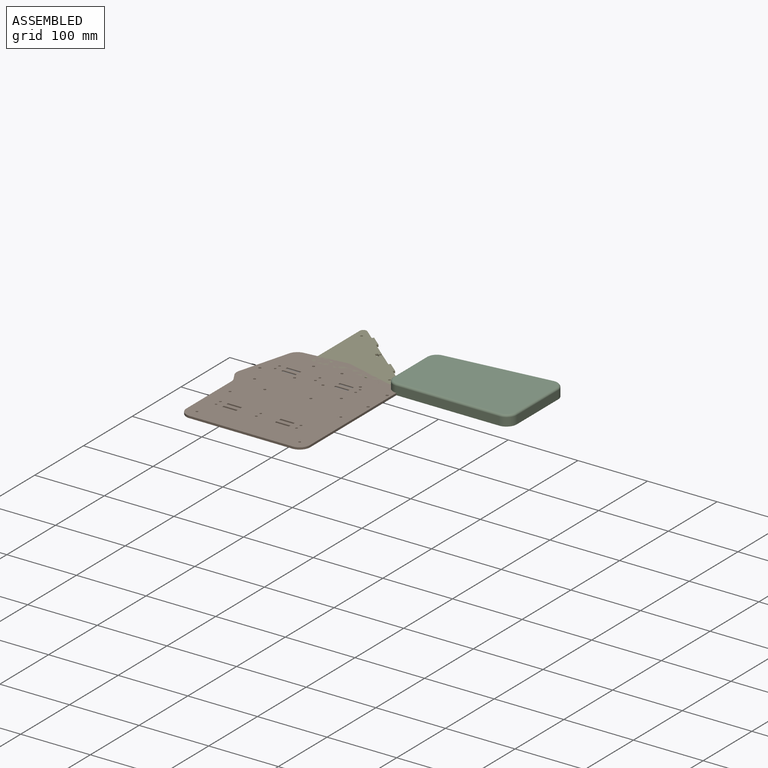
[diagram: assembled view]
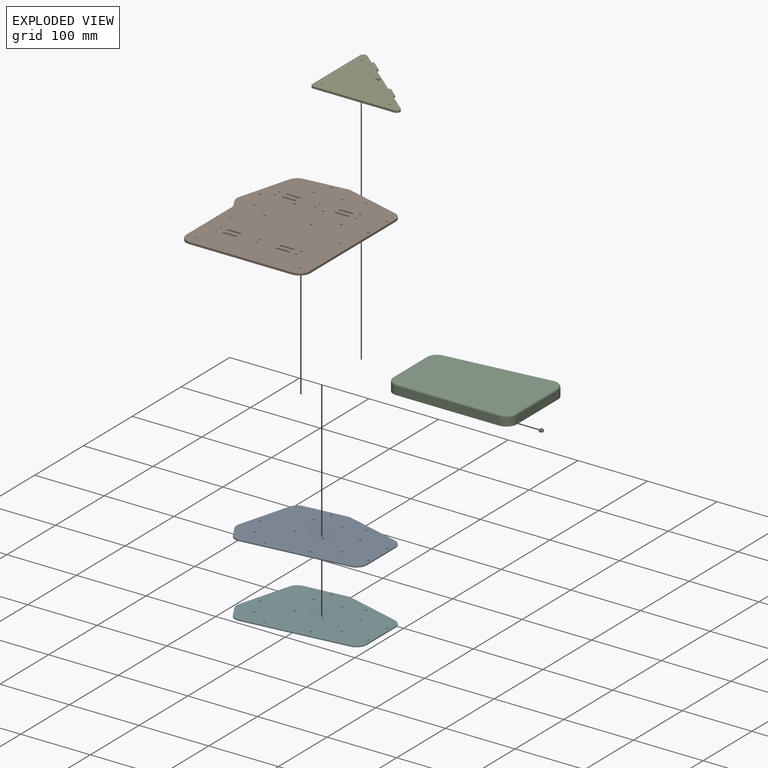
[diagram: exploded view]
GUIDED TOUR — FREECAD ASSEMBLY "tented_case"

This assembly has 6 components, labeled P0..P5 below (a component is one placed body or linked part; the same part can appear more than once), held together by 0 modeled joints plus 15 derived contact edges. A joint is a constraint between two components; its type names the relative motion it leaves free:
  CONTACT — a derived adjacency edge — the two components touch in the source model (clearance under 2% of the assembly's diagonal); it is measured from the geometry, not a modeled constraint.
Axis/direction vectors are unit vectors and 'through' points are millimeter coordinates, both in the assembly's world frame.

MATES
  1. CONTACT "contact_0_1": P0 <-> P1, contact direction (0.000, 0.000, 1.000) through (-153.52, 13.92, 0.00) mm (derived from contact, not a modeled constraint)
  2. CONTACT "contact_0_2": P0 <-> P2, contact direction (0.809, 0.588, 0.026) through (-0.08, -14.88, 0.00) mm (derived from contact, not a modeled constraint)
  3. CONTACT "contact_0_3": P0 <-> P3, contact direction (0.809, 0.588, 0.026) through (-3.51, -4.02, 0.00) mm (derived from contact, not a modeled constraint)
  4. CONTACT "contact_0_4": P0 <-> P4, contact direction (0.000, 0.000, 1.000) through (-11.48, -1.13, 0.00) mm (derived from contact, not a modeled constraint)
  5. CONTACT "contact_0_5": P0 <-> P5, contact direction (0.000, 0.000, -1.000) through (-74.79, -86.68, 0.00) mm (derived from contact, not a modeled constraint)
  6. CONTACT "contact_1_2": P1 <-> P2, contact direction (0.809, 0.588, 0.026) through (-0.08, -14.88, 0.00) mm (derived from contact, not a modeled constraint)
  7. CONTACT "contact_1_3": P1 <-> P3, contact direction (0.809, 0.588, 0.026) through (-2.77, -4.69, 0.00) mm (derived from contact, not a modeled constraint)
  8. CONTACT "contact_1_4": P1 <-> P4, contact direction (0.000, 0.000, 1.000) through (-10.89, -1.14, 0.00) mm (derived from contact, not a modeled constraint)
  9. CONTACT "contact_1_5": P1 <-> P5, contact direction (0.000, 0.000, -1.000) through (-74.79, -86.68, 0.00) mm (derived from contact, not a modeled constraint)
  10. CONTACT "contact_2_3": P2 <-> P3, contact direction (0.000, 0.000, -1.000) through (-0.90, -1.23, 0.00) mm (derived from contact, not a modeled constraint)
  11. CONTACT "contact_2_4": P2 <-> P4, contact direction (0.000, 0.000, -1.000) through (-14.37, 0.00, 0.00) mm (derived from contact, not a modeled constraint)
  12. CONTACT "contact_2_5": P2 <-> P5, contact direction (-0.809, -0.588, -0.026) through (-0.08, -14.88, 0.00) mm (derived from contact, not a modeled constraint)
  13. CONTACT "contact_3_4": P3 <-> P4, contact direction (-1.000, 0.000, 0.000) through (-5.96, 2.07, 0.00) mm (derived from contact, not a modeled constraint)
  14. CONTACT "contact_3_5": P3 <-> P5, contact direction (-0.809, -0.588, -0.026) through (-3.51, -4.02, 0.00) mm (derived from contact, not a modeled constraint)
  15. CONTACT "contact_4_5": P4 <-> P5, contact direction (0.000, 0.000, -1.000) through (-11.48, -1.13, 0.00) mm (derived from contact, not a modeled constraint)

ASSEMBLY ORDER
  1. P2 — the base component [order verified]
  2. P4 [order verified]
  3. P1 [order verified]
  4. P3 [order verified]
  5. P0 [order verified]
  6. P5 [order verified]
Order-tag legend:
  [order verified] — this step's position reverses a verified removal order: the component was checked to insert without passing through the ones already placed.

Of the 6 components, 6 carry a construction recipe — the FreeCAD feature program (sketches with constraints, then the solid features that consume them) that regenerates the part from scratch, quoted from this document or from the linked companion document it references; the rest are supplied as boundary geometry only. The tour below walks the components in assembly order: each is shown spotlighted twice — in the assembled view, then in the exploded view, where a leader line traces a displaced component back to its assembled socket (components that stay in place when exploded have no leader line; saturated green if recipe-attached, orange if geometry-only; every other component desaturated gray) — followed by its recipe or geometry summary and the mates that hold it.
NOTE — this tour is split across 2 documents so each fits a 32k-token context. This is document 1: the component sections continue in the remaining 1 document, each repeating the header above.
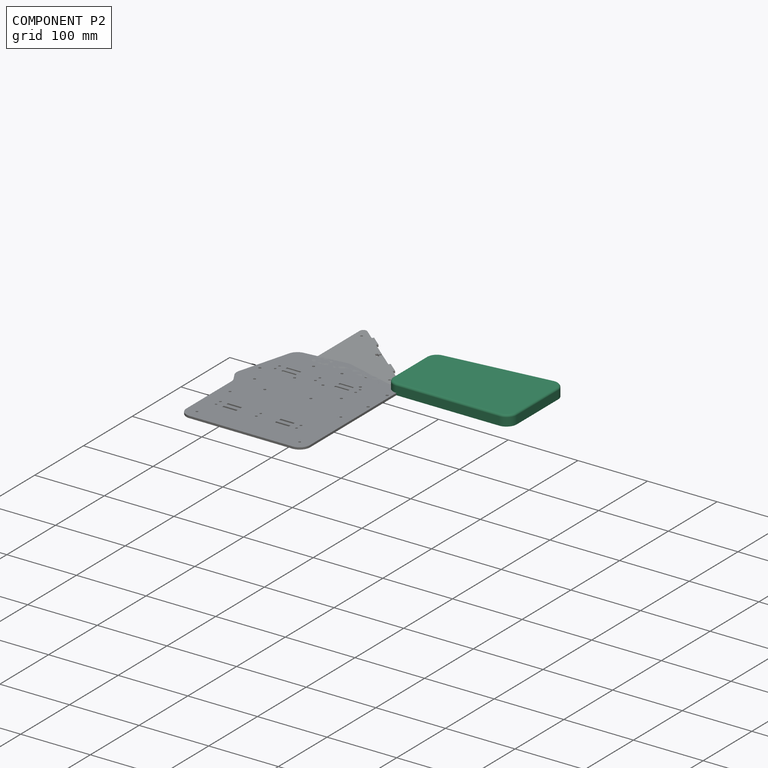
[diagram: component P2 — assembled]
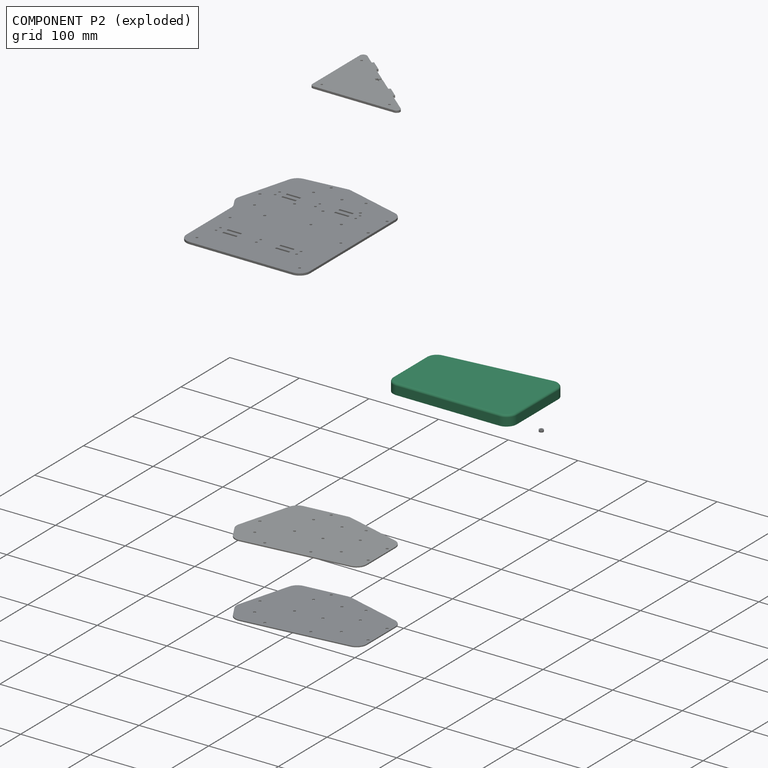
[diagram: component P2 — exploded]
COMPONENT P2 — recipe-attached ("PalmRest_Right", modeled in this document).
Held by: resting contact with P0 (derived edge); resting contact with P1 (derived edge); resting contact with P3 (derived edge); resting contact with P4 (derived edge); resting contact with P5 (derived edge).
Construction recipe (the document's own serialized feature program — sketch geometry with constraints, then the solid features built on it; lengths are millimeters unless a unit is written):

FEATURE [PartDesign::CoordinateSystem] LCS_0004  label="PalmRest_Right_MountingHole_01"
  AttacherType = Attacher::AttachEngine3D
  MapMode = 2
  Support = -> [X_Axis005]
FEATURE [Sketcher::SketchObject] Sketch019
  FullyConstrained = true
  MapMode = 5
  Support = -> [XY_Plane005]
  expr: Constraints[28] = <<PCB Outline S>>.Constraints.vertex_radius
  expr: Constraints[25] = Sketch016.Constraints.palm_rest_height_1
  expr: Constraints[26] = Sketch016.Constraints.palm_rest_width
  expr: Constraints[27] = Sketch016.Constraints.palm_rest_height_2
  sketch-geometry (10):
    g0: ArcOfCircle CenterX=0 CenterY=0 CenterZ=0 NormalX=0 NormalY=0 NormalZ=1 AngleXU=0 Radius=15 StartAngle=3.14159 EndAngle=4.71239
    g1: ArcOfCircle CenterX=147.537 CenterY=0 CenterZ=0 NormalX=0 NormalY=0 NormalZ=1 AngleXU=0 Radius=15 StartAngle=4.71239 EndAngle=6.28319
    g2: Circle CenterX=0 CenterY=68 CenterZ=0 NormalX=0 NormalY=0 NormalZ=1 AngleXU=0 Radius=15
    g3: Circle CenterX=147.537 CenterY=84.4875 CenterZ=0 NormalX=0 NormalY=0 NormalZ=1 AngleXU=0 Radius=15
    g4: LineSegment StartX=-2.8e-15 StartY=-15 StartZ=0 EndX=147.537 EndY=-15 EndZ=0
    g5: LineSegment StartX=-15 StartY=68 StartZ=0 EndX=-15 EndY=0 EndZ=0
    g6: LineSegment StartX=-1.66586 StartY=82.9072 StartZ=0 EndX=145.872 EndY=99.3947 EndZ=0
    g7: LineSegment StartX=162.537 StartY=84.4875 StartZ=0 EndX=162.537 EndY=5.39713e-06 EndZ=0
    g8: ArcOfCircle CenterX=0 CenterY=68 CenterZ=0 NormalX=0 NormalY=0 NormalZ=1 AngleXU=0 Radius=15 StartAngle=1.68208 EndAngle=3.14159
    g9: ArcOfCircle CenterX=147.537 CenterY=84.4875 CenterZ=0 NormalX=0 NormalY=0 NormalZ=1 AngleXU=0 Radius=15 StartAngle=6.28318 EndAngle=7.96527
  constraints (29):
    c: Horizontal(g1,g0)
    c: Vertical(g2,g0)
    c: Vertical(g3,g1)
    c: Equal(g0,g1)
    c: Equal(g1,g2)
    c: Equal(g2,g3)
    c: Horizontal(g4)
    c: PointOnObject(g5,g2)
    c: Vertical(g5)
    c: PointOnObject(g7,g3)
    c: Vertical(g7)
    c: Tangent(g6,g2)
    c: Tangent(g3,g6)
    c: Tangent(g0,g5) = -1.5708
    c: Tangent(g0,g4) = -1.5708
    c: Coincident(g1,g4)
    c: Coincident(g1,g7)
    c: Coincident(g8,g2)
    c: Coincident(g8,g5)
    c: Coincident(g8,g6)
    c: Coincident(g9,g3)
    c: Coincident(g9,g6)
    c: Coincident(g9,g7)
    c: Tangent(g7,g3)
    c: Coincident(g0,g-1)
    c: DistanceY(g0,g8) = 68
    c: DistanceX(g0,g1) = 147.537
    c: DistanceY(g1,g9) = 84.4875
    c: Radius(g1) = 15
FEATURE [PartDesign::Pad] Pad004  label="PalmRest_Right_Body"
  Direction = (1,1,1)
  Length = 15
  Length2 = 100
  Profile = -> Sketch019
  Type = 0
FEATURE [Sketcher::SketchObject] Sketch020
  ExternalGeometry = -> [Sketch019]
  FullyConstrained = true
  MapMode = 5
  Support = -> [XY_Plane005]
  expr: Constraints[25] = Sketch019.Constraints[25]
  expr: Constraints[28] = Sketch019.Constraints[28]
  expr: Constraints[26] = Sketch019.Constraints[26]
  expr: Constraints[27] = Sketch019.Constraints[27]
  sketch-geometry (34):
    g0: ArcOfCircle CenterX=0 CenterY=0 CenterZ=0 NormalX=0 NormalY=0 NormalZ=1 AngleXU=0 Radius=15 StartAngle=3.14159 EndAngle=4.71239
    g1: ArcOfCircle CenterX=147.537 CenterY=0 CenterZ=0 NormalX=0 NormalY=0 NormalZ=1 AngleXU=0 Radius=15 StartAngle=4.71239 EndAngle=6.28319
    g2: Circle CenterX=0 CenterY=68 CenterZ=0 NormalX=0 NormalY=0 NormalZ=1 AngleXU=0 Radius=15
    g3: Circle CenterX=147.537 CenterY=84.4875 CenterZ=0 NormalX=0 NormalY=0 NormalZ=1 AngleXU=0 Radius=15
    g4: LineSegment StartX=-2.8e-15 StartY=-15 StartZ=0 EndX=147.537 EndY=-15 EndZ=0
    g5: LineSegment StartX=-15 StartY=68 StartZ=0 EndX=-15 EndY=0 EndZ=0
    g6: LineSegment StartX=-1.66585 StartY=82.9072 StartZ=0 EndX=145.872 EndY=99.3947 EndZ=0
    g7: LineSegment StartX=162.537 StartY=84.4875 StartZ=0 EndX=162.537 EndY=9.14801e-06 EndZ=0
    g8: ArcOfCircle CenterX=0 CenterY=68 CenterZ=0 NormalX=0 NormalY=0 NormalZ=1 AngleXU=0 Radius=15 StartAngle=1.68208 EndAngle=3.14159
    g9: ArcOfCircle CenterX=147.537 CenterY=84.4875 CenterZ=0 NormalX=0 NormalY=0 NormalZ=1 AngleXU=0 Radius=15 StartAngle=6.28318 EndAngle=7.96527
    g10: LineSegment StartX=0.881678 StartY=66.7865 StartZ=0 EndX=1.42658 EndY=68.4635 EndZ=0
    g11: LineSegment StartX=1.42658 StartY=68.4635 StartZ=0 EndX=0 EndY=69.5 EndZ=0
    g12: LineSegment StartX=0 StartY=69.5 StartZ=0 EndX=-1.42658 EndY=68.4635 EndZ=0
    g13: LineSegment StartX=-1.42658 StartY=68.4635 StartZ=0 EndX=-0.881678 EndY=66.7865 EndZ=0
    g14: LineSegment StartX=-0.881678 StartY=66.7865 StartZ=0 EndX=0.881678 EndY=66.7865 EndZ=0
    g15: Circle CenterX=0 CenterY=68 CenterZ=0 NormalX=0 NormalY=0 NormalZ=1 AngleXU=0 Radius=1.5
    g16: LineSegment StartX=148.419 StartY=83.274 StartZ=0 EndX=148.964 EndY=84.951 EndZ=0
    g17: LineSegment StartX=148.964 StartY=84.951 StartZ=0 EndX=147.537 EndY=85.9875 EndZ=0
    g18: LineSegment StartX=147.537 StartY=85.9875 StartZ=0 EndX=146.111 EndY=84.951 EndZ=0
    g19: LineSegment StartX=146.111 StartY=84.951 StartZ=0 EndX=146.656 EndY=83.274 EndZ=0
    g20: LineSegment StartX=146.656 StartY=83.274 StartZ=0 EndX=148.419 EndY=83.274 EndZ=0
    g21: Circle CenterX=147.537 CenterY=84.4875 CenterZ=0 NormalX=0 NormalY=0 NormalZ=1 AngleXU=0 Radius=1.5
    g22: LineSegment StartX=0.881678 StartY=-1.21353 StartZ=0 EndX=1.42658 EndY=0.463525 EndZ=0
    g23: LineSegment StartX=1.42658 StartY=0.463525 StartZ=0 EndX=0 EndY=1.5 EndZ=0
    g24: LineSegment StartX=0 StartY=1.5 StartZ=0 EndX=-1.42658 EndY=0.463525 EndZ=0
    g25: LineSegment StartX=-1.42658 StartY=0.463525 StartZ=0 EndX=-0.881678 EndY=-1.21353 EndZ=0
    g26: LineSegment StartX=-0.881678 StartY=-1.21353 StartZ=0 EndX=0.881678 EndY=-1.21353 EndZ=0
    g27: Circle CenterX=0 CenterY=0 CenterZ=0 NormalX=0 NormalY=0 NormalZ=1 AngleXU=0 Radius=1.5
    g28: LineSegment StartX=148.419 StartY=-1.21353 StartZ=0 EndX=148.964 EndY=0.463525 EndZ=0
    g29: LineSegment StartX=148.964 StartY=0.463525 StartZ=0 EndX=147.537 EndY=1.5 EndZ=0
    g30: LineSegment StartX=147.537 StartY=1.5 StartZ=0 EndX=146.111 EndY=0.463525 EndZ=0
    g31: LineSegment StartX=146.111 StartY=0.463525 StartZ=0 EndX=146.656 EndY=-1.21353 EndZ=0
    g32: LineSegment StartX=146.656 StartY=-1.21353 StartZ=0 EndX=148.419 EndY=-1.21353 EndZ=0
    g33: Circle CenterX=147.537 CenterY=0 CenterZ=0 NormalX=0 NormalY=0 NormalZ=1 AngleXU=0 Radius=1.5
  constraints (85):
    c: Horizontal(g1,g0)
    c: Vertical(g2,g0)
    c: Vertical(g3,g1)
    c: Equal(g0,g1)
    c: Equal(g1,g2)
    c: Equal(g2,g3)
    c: Horizontal(g4)
    c: PointOnObject(g5,g2)
    c: Vertical(g5)
    c: PointOnObject(g7,g3)
    c: Vertical(g7)
    c: Tangent(g6,g2)
    c: Tangent(g3,g6)
    c: Tangent(g0,g5) = -1.5708
    c: Tangent(g0,g4) = -1.5708
    c: Coincident(g1,g4)
    c: Coincident(g1,g7)
    c: Coincident(g8,g2)
    c: Coincident(g8,g5)
    c: Coincident(g8,g6)
    c: Coincident(g9,g3)
    c: Coincident(g9,g6)
    c: Coincident(g9,g7)
    c: Tangent(g7,g3)
    c: Coincident(g0,g-1)
    c: DistanceY(g0,g8) = 68
    c: DistanceX(g0,g1) = 147.537
    c: DistanceY(g1,g9) = 84.4875
    c: Radius(g1) = 15
    c: Coincident(g10,g11)
    c: Coincident(g11,g12)
    c: Coincident(g12,g13)
    c: Coincident(g13,g14)
    c: Coincident(g14,g10)
    c: Equal(g10, g11-g14) x4
    c: PointOnObject(g10,g15)
    c: PointOnObject(g11,g15)
    c: PointOnObject(g12,g15)
    c: PointOnObject(g13,g15)
    c: PointOnObject(g14,g15)
    c: Coincident(g15,g2)
    c: Coincident(g16,g17)
    c: Coincident(g17,g18)
    c: Coincident(g18,g19)
    c: Coincident(g19,g20)
    c: Coincident(g20,g16)
    c: Equal(g16, g17-g20) x4
    c: PointOnObject(g16,g21)
    c: PointOnObject(g17,g21)
    c: PointOnObject(g18,g21)
    c: PointOnObject(g19,g21)
    c: PointOnObject(g20,g21)
    c: Coincident(g21,g3)
    c: Coincident(g22,g23)
    c: Coincident(g23,g24)
    c: Coincident(g24,g25)
    c: Coincident(g25,g26)
    c: Coincident(g26,g22)
    c: Equal(g22, g23-g26) x4
    c: PointOnObject(g22,g27)
    c: PointOnObject(g23,g27)
    c: PointOnObject(g24,g27)
    c: PointOnObject(g25,g27)
    c: PointOnObject(g26,g27)
    c: Coincident(g27,g-1)
    c: Coincident(g28,g29)
    c: Coincident(g29,g30)
    c: Coincident(g30,g31)
    c: Coincident(g31,g32)
    c: Coincident(g32,g28)
    c: Equal(g28, g29-g32) x4
    c: PointOnObject(g28,g33)
    c: PointOnObject(g29,g33)
    c: PointOnObject(g30,g33)
    c: PointOnObject(g31,g33)
    c: PointOnObject(g32,g33)
    c: Coincident(g33,g1)
    c: Equal(g15,g27)
    c: Equal(g27,g21)
    c: Equal(g21,g33)
    c: Horizontal(g32)
    c: Horizontal(g20)
    c: Horizontal(g14)
    c: Horizontal(g26)
    c: Diameter(g15) = 3
FEATURE [PartDesign::Pocket] Pocket003  label="PalmRest_Right_MountingHoles"
  BaseFeature = -> Pad004
  Length = 5
  Length2 = 100
  Profile = -> Sketch020
  Reversed = true
  Type = 0
FEATURE [PartDesign::Fillet] Fillet
  Base = -> Pocket003 [Edge37]
  BaseFeature = -> Pocket003
  Radius = 3
  SupportTransform = false
FEATURE [Sketcher::SketchObject] Sketch023
  ExternalGeometry = -> [Sketch019]
  FullyConstrained = true
  MapMode = 5
  Support = -> [XY_Plane005]
  expr: Constraints[96] = Sketch020.Constraints[96]
  expr: Constraints[27] = Sketch020.Constraints[27]
  expr: Constraints[26] = Sketch020.Constraints[26]
  expr: Constraints[28] = Sketch020.Constraints[28]
  expr: Constraints[25] = Sketch020.Constraints[25]
  sketch-geometry (39):
    g0: ArcOfCircle CenterX=0 CenterY=0 CenterZ=0 NormalX=0 NormalY=0 NormalZ=1 AngleXU=0 Radius=15 StartAngle=3.14159 EndAngle=4.71239
    g1: ArcOfCircle CenterX=147.537 CenterY=0 CenterZ=0 NormalX=0 NormalY=0 NormalZ=1 AngleXU=0 Radius=15 StartAngle=4.71239 EndAngle=6.28319
    g2: Circle CenterX=0 CenterY=68 CenterZ=0 NormalX=0 NormalY=0 NormalZ=1 AngleXU=0 Radius=15
    g3: Circle CenterX=147.537 CenterY=84.4875 CenterZ=0 NormalX=0 NormalY=0 NormalZ=1 AngleXU=0 Radius=15
    g4: LineSegment StartX=-2.8e-15 StartY=-15 StartZ=0 EndX=147.537 EndY=-15 EndZ=0
    g5: LineSegment StartX=-15 StartY=68 StartZ=0 EndX=-15 EndY=0 EndZ=0
    g6: LineSegment StartX=-1.6659 StartY=82.9072 StartZ=0 EndX=145.872 EndY=99.3947 EndZ=0
    g7: LineSegment StartX=162.537 StartY=84.4875 StartZ=0 EndX=162.537 EndY=5.14117e-07 EndZ=0
    g8: ArcOfCircle CenterX=0 CenterY=68 CenterZ=0 NormalX=0 NormalY=0 NormalZ=1 AngleXU=0 Radius=15 StartAngle=1.68209 EndAngle=3.14159
    g9: ArcOfCircle CenterX=147.537 CenterY=84.4875 CenterZ=0 NormalX=0 NormalY=0 NormalZ=1 AngleXU=0 Radius=15 StartAngle=1.10278e-06 EndAngle=1.68209
    g10: LineSegment StartX=0.881678 StartY=66.7865 StartZ=0 EndX=1.42658 EndY=68.4635 EndZ=0
    g11: LineSegment StartX=1.42658 StartY=68.4635 StartZ=0 EndX=-2e-16 EndY=69.5 EndZ=0
    g12: LineSegment StartX=-2e-16 StartY=69.5 StartZ=0 EndX=-1.42658 EndY=68.4635 EndZ=0
    g13: LineSegment StartX=-1.42658 StartY=68.4635 StartZ=0 EndX=-0.881678 EndY=66.7865 EndZ=0
    g14: LineSegment StartX=-0.881678 StartY=66.7865 StartZ=0 EndX=0.881678 EndY=66.7865 EndZ=0
    g15: Circle CenterX=0 CenterY=68 CenterZ=0 NormalX=0 NormalY=0 NormalZ=1 AngleXU=0 Radius=1.5
    g16: LineSegment StartX=148.419 StartY=83.274 StartZ=0 EndX=148.964 EndY=84.951 EndZ=0
    g17: LineSegment StartX=148.964 StartY=84.951 StartZ=0 EndX=147.537 EndY=85.9875 EndZ=0
    g18: LineSegment StartX=147.537 StartY=85.9875 StartZ=0 EndX=146.111 EndY=84.951 EndZ=0
    g19: LineSegment StartX=146.111 StartY=84.951 StartZ=0 EndX=146.656 EndY=83.274 EndZ=0
    g20: LineSegment StartX=146.656 StartY=83.274 StartZ=0 EndX=148.419 EndY=83.274 EndZ=0
    g21: Circle CenterX=147.537 CenterY=84.4875 CenterZ=0 NormalX=0 NormalY=0 NormalZ=1 AngleXU=0 Radius=1.5
    g22: LineSegment StartX=0.881678 StartY=-1.21353 StartZ=0 EndX=1.42658 EndY=0.463525 EndZ=0
    g23: LineSegment StartX=1.42658 StartY=0.463525 StartZ=0 EndX=0 EndY=1.5 EndZ=0
    g24: LineSegment StartX=0 StartY=1.5 StartZ=0 EndX=-1.42658 EndY=0.463525 EndZ=0
    g25: LineSegment StartX=-1.42658 StartY=0.463525 StartZ=0 EndX=-0.881678 EndY=-1.21353 EndZ=0
    g26: LineSegment StartX=-0.881678 StartY=-1.21353 StartZ=0 EndX=0.881678 EndY=-1.21353 EndZ=0
    g27: Circle CenterX=0 CenterY=0 CenterZ=0 NormalX=0 NormalY=0 NormalZ=1 AngleXU=0 Radius=1.5
    g28: LineSegment StartX=148.419 StartY=-1.21353 StartZ=0 EndX=148.964 EndY=0.463525 EndZ=0
    g29: LineSegment StartX=148.964 StartY=0.463525 StartZ=0 EndX=147.537 EndY=1.5 EndZ=0
    g30: LineSegment StartX=147.537 StartY=1.5 StartZ=0 EndX=146.111 EndY=0.463525 EndZ=0
    g31: LineSegment StartX=146.111 StartY=0.463525 StartZ=0 EndX=146.656 EndY=-1.21353 EndZ=0
    g32: LineSegment StartX=146.656 StartY=-1.21353 StartZ=0 EndX=148.419 EndY=-1.21353 EndZ=0
    g33: Circle CenterX=147.537 CenterY=0 CenterZ=0 NormalX=0 NormalY=0 NormalZ=1 AngleXU=0 Radius=1.5
    g34: LineSegment StartX=0 StartY=46.5 StartZ=0 EndX=147.537 EndY=46.5 EndZ=0
    g35: LineSegment StartX=147.537 StartY=46.5 StartZ=0 EndX=147.537 EndY=21.5 EndZ=0
    g36: LineSegment StartX=147.537 StartY=21.5 StartZ=0 EndX=0 EndY=21.5 EndZ=0
    g37: LineSegment StartX=0 StartY=21.5 StartZ=0 EndX=0 EndY=46.5 EndZ=0
    g38: LineSegment StartX=0 StartY=34 StartZ=0 EndX=147.537 EndY=34 EndZ=0
  constraints (99):
    c: Horizontal(g1,g0)
    c: Vertical(g2,g0)
    c: Vertical(g3,g1)
    c: Equal(g0,g1)
    c: Equal(g1,g2)
    c: Equal(g2,g3)
    c: Horizontal(g4)
    c: PointOnObject(g5,g2)
    c: Vertical(g5)
    c: PointOnObject(g7,g3)
    c: Vertical(g7)
    c: Tangent(g6,g2)
    c: Tangent(g3,g6)
    c: Tangent(g0,g5) = -1.5708
    c: Tangent(g0,g4) = -1.5708
    c: Coincident(g1,g4)
    c: Coincident(g1,g7)
    c: Coincident(g8,g2)
    c: Coincident(g8,g5)
    c: Coincident(g8,g6)
    c: Coincident(g9,g3)
    c: Coincident(g9,g6)
    c: Coincident(g9,g7)
    c: Tangent(g7,g3)
    c: Coincident(g0,g-1)
    c: DistanceY(g0,g8) = 68
    c: DistanceX(g0,g1) = 147.537
    c: DistanceY(g1,g9) = 84.4875
    c: Radius(g1) = 15
    c: Coincident(g10,g11)
    c: Coincident(g11,g12)
    c: Coincident(g12,g13)
    c: Coincident(g13,g14)
    c: Coincident(g14,g10)
    c: Equal(g10, g11-g14) x4
    c: PointOnObject(g10,g15)
    c: PointOnObject(g11,g15)
    c: PointOnObject(g12,g15)
    c: PointOnObject(g13,g15)
    c: PointOnObject(g14,g15)
    c: Coincident(g15,g2)
    c: Coincident(g16,g17)
    c: Coincident(g17,g18)
    c: Coincident(g18,g19)
    c: Coincident(g19,g20)
    c: Coincident(g20,g16)
    c: Equal(g16, g17-g20) x4
    c: PointOnObject(g16,g21)
    c: PointOnObject(g17,g21)
    c: PointOnObject(g18,g21)
    c: PointOnObject(g19,g21)
    c: PointOnObject(g20,g21)
    c: Coincident(g21,g3)
    c: Coincident(g22,g23)
    c: Coincident(g23,g24)
    c: Coincident(g24,g25)
    c: Coincident(g25,g26)
    c: Coincident(g26,g22)
    c: Equal(g22, g23-g26) x4
    c: PointOnObject(g22,g27)
    c: PointOnObject(g23,g27)
    c: PointOnObject(g24,g27)
    c: PointOnObject(g25,g27)
    c: PointOnObject(g26,g27)
    c: Coincident(g27,g-1)
    c: Coincident(g28,g29)
    c: Coincident(g29,g30)
    c: Coincident(g30,g31)
    c: Coincident(g31,g32)
    c: Coincident(g32,g28)
    c: Equal(g28, g29-g32) x4
    c: PointOnObject(g28,g33)
    c: PointOnObject(g29,g33)
    c: PointOnObject(g30,g33)
    c: PointOnObject(g31,g33)
    c: PointOnObject(g32,g33)
    c: Coincident(g33,g1)
    c: Equal(g15,g27)
    c: Equal(g27,g21)
    c: Equal(g21,g33)
    c: Horizontal(g32)
    c: Horizontal(g20)
    c: Horizontal(g14)
    c: Horizontal(g26)
    c: Diameter(g15) = 3
    c: Coincident(g34,g35)
    c: Coincident(g35,g36)
    c: Coincident(g36,g37)
    c: Coincident(g37,g34)
    c: Horizontal(g34)
    c: Horizontal(g36)
    c: Vertical(g35)
    c: Vertical(g37)
    c: PointOnObject(g38,g35)
    c: Horizontal(g38)
    c: Symmetric(g2,g-1,g38)
    c: Symmetric(g34,g36,g38)
    c: Vertical(g3,g38)
    c: DistanceY(g35,g35) = 25
FEATURE [PartDesign::Pocket] Pocket005
  BaseFeature = -> Fillet
  Length = 6
  Length2 = 100
  Profile = -> Sketch023
  Reversed = true
  Type = 0
FEATURE [PartDesign::Body] Palm_Rest  label="PalmRest_Right"
  Group = -> [LCS_0004,Sketch019,Pad004,Sketch020,Pocket003,Fillet,Sketch023,Pocket005]
  Origin = -> Origin005
  Tip = -> Pocket005
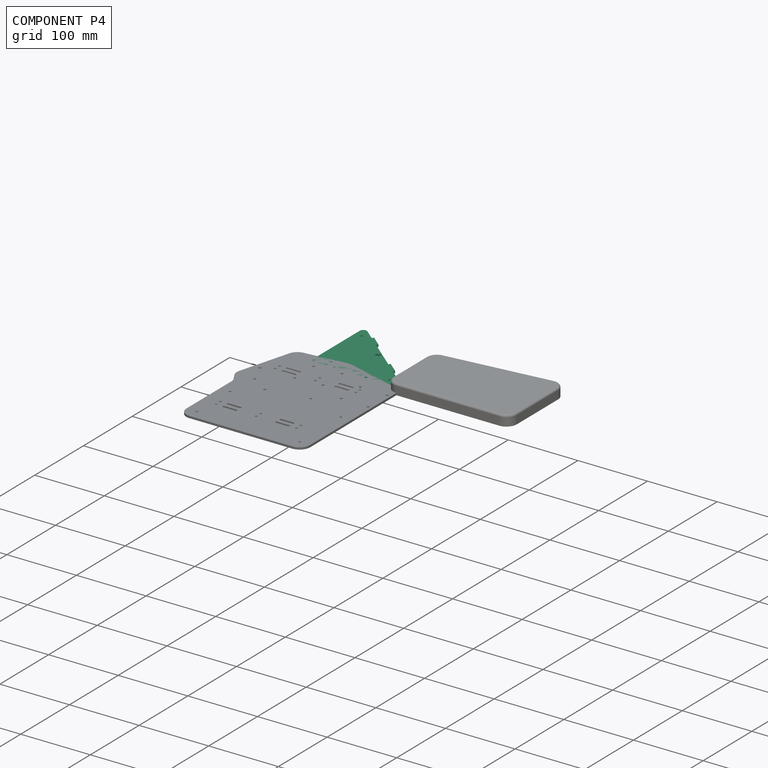
[diagram: component P4 — assembled]
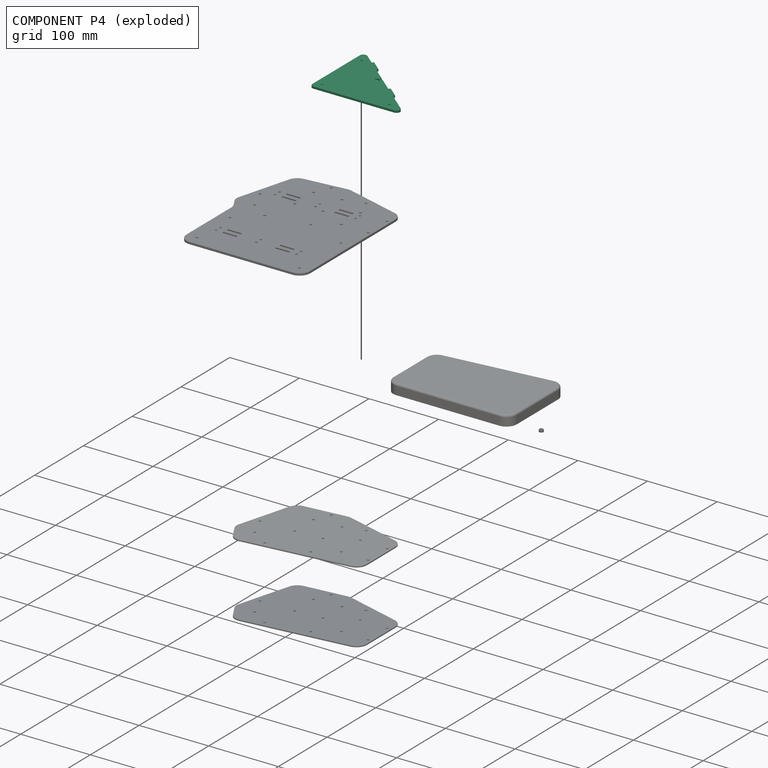
[diagram: component P4 — exploded]
COMPONENT P4 — recipe-attached ("StandPanel", modeled in this document).
Held by: resting contact with P0 (derived edge); resting contact with P1 (derived edge); resting contact with P2 (derived edge); resting contact with P3 (derived edge); resting contact with P5 (derived edge).
Construction recipe (the document's own serialized feature program — sketch geometry with constraints, then the solid features built on it; lengths are millimeters unless a unit is written):

FEATURE [Sketcher::SketchObject] Sketch021
  FullyConstrained = true
  MapMode = 5
  Support = -> [XY_Plane006]
  expr: Constraints[58] = <<TentingStand_Mount_S>>.Constraints.tab_width
  expr: Constraints[49] = <<TentingStand_Mount_S>>.Constraints.tab_width
  expr: Constraints[42] = <<TentingStand_Mount_S>>.Constraints.first_tab_offset
  expr: Constraints[6] = <<Parameters>>.tent_angle
  expr: Constraints[94] = 10mm - 3mm - (.Constraints.nut_chamber_height - 1mm)
  expr: Constraints[29] = .Constraints.mounting_hole_edge_offset
  expr: Constraints[30] = .Constraints.mounting_hole_edge_offset
  expr: Constraints[28] = .Constraints.mounting_hole_edge_offset
  expr: Constraints[37] = <<TentingStand_Mount_S>>.Constraints.tangent_length
  expr: Constraints[117] = <<TentingStand_Mount_S>>.Constraints.second_tab_offset
  sketch-geometry (46):
    g0: LineSegment StartX=-134.592 StartY=112.936 StartZ=0 EndX=-134.592 EndY=0 EndZ=0
    g1: LineSegment StartX=-134.592 StartY=112.936 StartZ=0 EndX=0 EndY=0 EndZ=0
    g2: LineSegment StartX=0 StartY=0 StartZ=0 EndX=-134.592 EndY=0 EndZ=0
    g3: LineSegment StartX=-134.592 StartY=102.213 StartZ=0 EndX=-134.592 EndY=5 EndZ=0
    g4: LineSegment StartX=-129.592 StartY=0 StartZ=0 EndX=-13.7374 EndY=0 EndZ=0
    g5: LineSegment StartX=-126.378 StartY=106.044 StartZ=0 EndX=-10.5234 EndY=8.83022 EndZ=0
    g6: ArcOfCircle CenterX=-129.592 CenterY=102.213 CenterZ=0 NormalX=0 NormalY=0 NormalZ=1 AngleXU=0 Radius=5 StartAngle=0.872665 EndAngle=3.14159
    g7: ArcOfCircle CenterX=-129.592 CenterY=5 CenterZ=0 NormalX=0 NormalY=0 NormalZ=1 AngleXU=0 Radius=5 StartAngle=3.14159 EndAngle=4.71239
    g8: ArcOfCircle CenterX=-13.7374 CenterY=5 CenterZ=0 NormalX=0 NormalY=0 NormalZ=1 AngleXU=0 Radius=5 StartAngle=4.71239 EndAngle=7.15585
    g9: LineSegment StartX=-124.592 StartY=91.4909 StartZ=0 EndX=-124.592 EndY=10 EndZ=0
    g10: LineSegment StartX=-124.592 StartY=91.4909 StartZ=0 EndX=-27.4748 EndY=10 EndZ=0
    g11: LineSegment StartX=-27.4748 StartY=10 StartZ=0 EndX=-124.592 EndY=10 EndZ=0
    g12: Circle CenterX=-124.592 CenterY=91.4909 CenterZ=0 NormalX=0 NormalY=0 NormalZ=1 AngleXU=0 Radius=1.55
    g13: Circle CenterX=-124.592 CenterY=10 CenterZ=0 NormalX=0 NormalY=0 NormalZ=1 AngleXU=0 Radius=1.55
    g14: Circle CenterX=-27.4748 CenterY=10 CenterZ=0 NormalX=0 NormalY=0 NormalZ=1 AngleXU=0 Radius=1.55
    g15: LineSegment StartX=-38.3022 StartY=32.1394 StartZ=0 EndX=-36.3739 EndY=34.4375 EndZ=0
    g16: LineSegment StartX=-53.6231 StartY=44.9951 StartZ=0 EndX=-51.6947 EndY=47.2933 EndZ=0
    g17: LineSegment StartX=-51.6947 StartY=47.2933 StartZ=0 EndX=-36.3739 EndY=34.4375 EndZ=0
    g18: LineSegment StartX=-96.2896 StartY=80.7966 StartZ=0 EndX=-94.3612 EndY=83.0947 EndZ=0
    g19: LineSegment StartX=-111.61 StartY=93.6523 StartZ=0 EndX=-109.682 EndY=95.9505 EndZ=0
    g20: LineSegment StartX=-109.682 StartY=95.9505 StartZ=0 EndX=-94.3612 EndY=83.0947 EndZ=0
    g21: LineSegment StartX=-126.378 StartY=106.044 StartZ=0 EndX=-111.61 EndY=93.6523 EndZ=0
    g22: LineSegment StartX=-38.3022 StartY=32.1394 StartZ=0 EndX=-10.5234 EndY=8.83022 EndZ=0
    g23: LineSegment StartX=-36.3739 StartY=34.4375 StartZ=0 EndX=-38.3022 EndY=32.1394 EndZ=0
    g24: LineSegment StartX=-36.3739 StartY=34.4375 StartZ=0 EndX=-51.6947 EndY=47.2933 EndZ=0
    g25: LineSegment StartX=-111.61 StartY=93.6523 StartZ=0 EndX=-109.682 EndY=95.9505 EndZ=0
    g26: LineSegment StartX=-109.682 StartY=95.9505 StartZ=0 EndX=-94.3612 EndY=83.0947 EndZ=0
    g27: LineSegment StartX=-73.769 StartY=61.8995 StartZ=0 EndX=-76.6615 EndY=58.4523 EndZ=0
    g28: LineSegment StartX=-76.1437 StartY=63.8922 StartZ=0 EndX=-79.0363 EndY=60.445 EndZ=0
    g29: LineSegment StartX=-74.9564 StartY=62.8958 StartZ=0 EndX=-77.8489 EndY=59.4486 EndZ=0
    g30: LineSegment StartX=-79.0363 StartY=60.445 StartZ=0 EndX=-80.5301 EndY=61.6984 EndZ=0
    g31: LineSegment StartX=-80.5301 StartY=61.6984 StartZ=0 EndX=-82.7798 EndY=59.0173 EndZ=0
    g32: LineSegment StartX=-82.7798 StartY=59.0173 StartZ=0 EndX=-77.4175 EndY=54.5177 EndZ=0
    g33: LineSegment StartX=-77.4175 StartY=54.5177 StartZ=0 EndX=-75.1677 EndY=57.1989 EndZ=0
    g34: LineSegment StartX=-75.1677 StartY=57.1989 StartZ=0 EndX=-76.6615 EndY=58.4523 EndZ=0
    g35: LineSegment StartX=-96.2896 StartY=80.7966 StartZ=0 EndX=-76.1437 EndY=63.8922 EndZ=0
    g36: LineSegment StartX=-73.769 StartY=61.8995 StartZ=0 EndX=-53.6231 EndY=44.9951 EndZ=0
    g37: LineSegment StartX=-76.1437 StartY=63.8922 StartZ=0 EndX=-79.0363 EndY=60.445 EndZ=0
    g38: LineSegment StartX=-79.0363 StartY=60.445 StartZ=0 EndX=-80.5301 EndY=61.6984 EndZ=0
    g39: LineSegment StartX=-80.5301 StartY=61.6984 StartZ=0 EndX=-82.7798 EndY=59.0173 EndZ=0
    g40: LineSegment StartX=-82.7798 StartY=59.0173 StartZ=0 EndX=-77.4175 EndY=54.5177 EndZ=0
    g41: LineSegment StartX=-73.769 StartY=61.8995 StartZ=0 EndX=-76.6615 EndY=58.4523 EndZ=0
    g42: LineSegment StartX=-76.6615 StartY=58.4523 StartZ=0 EndX=-75.1677 EndY=57.1989 EndZ=0
    g43: LineSegment StartX=-75.1677 StartY=57.1989 StartZ=0 EndX=-77.4175 EndY=54.5177 EndZ=0
    g44: LineSegment StartX=-94.3612 StartY=83.0947 StartZ=0 EndX=-96.2896 EndY=80.7966 EndZ=0
    g45: LineSegment StartX=-51.6947 StartY=47.2933 StartZ=0 EndX=-53.6231 EndY=44.9951 EndZ=0
  constraints (118):
    c: PointOnObject(g0,g-1)
    c: Vertical(g0)
    c: Coincident(g1,g0)
    c: Coincident(g1,g-1)
    c: Coincident(g2,g1)
    c: Coincident(g2,g0)
    c: Angle(g1,g2) = 0.698132
    c: Tangent(g3,g6) = -1.5708
    c: Tangent(g5,g6) = 1.5708
    c: Tangent(g3,g7) = -1.5708
    c: Tangent(g4,g7) = -1.5708
    c: Tangent(g5,g8) = 1.5708
    c: Tangent(g4,g8) = -1.5708
    c: PointOnObject(g5,g1)
    c: PointOnObject(g4,g2)
    c: PointOnObject(g5,g1)
    c: PointOnObject(g3,g0)
    c: PointOnObject(g3,g0)
    c: PointOnObject(g4,g2)
    c: Radius(g7) = 5  'corner_radius'
    c: Equal(g6,g8)
    c: Equal(g8,g7)
    c: Vertical(g9)
    c: Coincident(g10,g9)
    c: Coincident(g11,g10)
    c: Coincident(g11,g9)
    c: Horizontal(g11)
    c: DistanceX(g0,g9) = 10  'mounting_hole_edge_offset'
    c: DistanceY(g0,g9) = 10
    c: Distance(g9,g1) = 10
    c: Distance(g10,g5) = 10
    c: Coincident(g12,g9)
    c: Coincident(g13,g9)
    c: Coincident(g14,g10)
    c: Equal(g12,g13)
    c: Equal(g13,g14)
    c: Diameter(g14) = 3.1  'mounting_hole_radius'
    c: Distance(g1) = 175.697
    c: Distance(g0,g5) = 10.7225  'tangent_keep_out_top'
    c: Distance(g-1,g5) = 13.7374  'tangent_keep_out_bottom'
    c: PointOnObject(g15,g5)
    c: Perpendicular(g15,g1)
    c: Distance(g-1,g15) = 50
    c: Distance(g15) = 3
    c: PointOnObject(g16,g5)
    c: Coincident(g17,g16)
    c: Coincident(g17,g15)
    c: Perpendicular(g16,g1)
    c: Equal(g15,g16)
    c: Distance(g16,g17) = 20
    c: PointOnObject(g18,g5)
    c: PointOnObject(g19,g5)
    c: Coincident(g20,g18)
    c: Perpendicular(g1,g18)
    c: Perpendicular(g1,g19)
    c: Coincident(g20,g19)
    c: Equal(g18,g19)
    c: Equal(g19,g16)
    c: Distance(g20) = 20
    c: Coincident(g21,g6)
    c: Coincident(g21,g19)
    c: Coincident(g22,g15)
    c: Coincident(g22,g8)
    c: Coincident(g23,g15)
    c: Coincident(g23,g22)
    c: Coincident(g24,g23)
    c: Coincident(g24,g16)
    c: Coincident(g25,g21)
    c: Coincident(g25,g19)
    c: Coincident(g26,g25)
    c: Coincident(g26,g18)
    c: PointOnObject(g27,g1)
    c: PointOnObject(g29,g1)
    c: Perpendicular(g27,g1)
    c: Perpendicular(g28,g1)
    c: Equal(g27,g29)
    c: Equal(g29,g28)
    c: Symmetric(g27,g28,g29)
    c: Symmetric(g18,g16,g29)
    c: Distance(g28,g27) = 3.1
    c: Coincident(g30,g28)
    c: Coincident(g31,g30)
    c: Coincident(g32,g31)
    c: Coincident(g33,g32)
    c: Coincident(g34,g33)
    c: Coincident(g34,g27)
    c: Equal(g30,g34)
    c: Equal(g31,g33)
    c: Perpendicular(g28,g30)
    c: Perpendicular(g34,g27)
    c: Parallel(g30,g32)
    c: Parallel(g31,g28)
    c: Distance(g32) = 7
    c: Distance(g33) = 3.5  'nut_chamber_height'
    c: Distance(g27) = 4.5
    c: Coincident(g35,g18)
    c: Coincident(g35,g28)
    c: Coincident(g36,g27)
    c: Coincident(g36,g16)
    c: Coincident(g37,g35)
    c: Coincident(g37,g28)
    c: Coincident(g38,g37)
    c: Coincident(g38,g30)
    c: Coincident(g39,g38)
    c: Coincident(g39,g31)
    c: Coincident(g40,g39)
    c: Coincident(g40,g32)
    c: Coincident(g41,g36)
    c: Coincident(g41,g27)
    c: Coincident(g42,g41)
    c: Coincident(g42,g33)
    c: Coincident(g43,g42)
    c: Coincident(g43,g40)
    c: Coincident(g44,g26)
    c: Coincident(g44,g35)
    c: Coincident(g45,g24)
    c: Coincident(g45,g36)
    c: Distance(g-1,g35) = 125.697
FEATURE [PartDesign::Pad] Pad005
  Direction = (1,1,1)
  Length = 3
  Length2 = 100
  Profile = -> Sketch021
  Type = 0
FEATURE [PartDesign::CoordinateSystem] Local_CS046  label="StandPanel_FirstTab"
  AttacherType = Attacher::AttachEngine3D
  MapMode = 45
  Placement = pos=(-44.0343,40.8654,1.5) rot=(0.671543,0.313146,0.671543;3.74854rad)
  Support = -> [Pad005]
FEATURE [PartDesign::CoordinateSystem] Local_CS049  label="StandPanel_AssemblyHole_2"
  AttacherType = Attacher::AttachEngine3D
  MapMode = 45
  Placement = pos=(-124.592,10,3) rot=(0,0,1;0rad)
  Support = -> [Pad005]
FEATURE [PartDesign::CoordinateSystem] Local_CS050  label="StandPanel_AssemblyHole_1"
  AttacherType = Attacher::AttachEngine3D
  MapMode = 45
  Placement = pos=(-27.4748,10,3) rot=(0,0,1;6e-06rad)
  Support = -> [Pad005]
FEATURE [PartDesign::CoordinateSystem] Local_CS051  label="StandPanel_AssemblyHole_3"
  AttacherType = Attacher::AttachEngine3D
  MapMode = 45
  Placement = pos=(-124.592,91.4909,3) rot=(0,0,1;0.000177rad)
  Support = -> [Pad005]
FEATURE [PartDesign::CoordinateSystem] Local_CS052  label="StandPanel_AssemblyHole_Back_1"
  AttacherType = Attacher::AttachEngine3D
  MapMode = 45
  Placement = pos=(-27.4748,10,0) rot=(0,0,1;6e-06rad)
  Support = -> [Pad005]
FEATURE [PartDesign::Body] StandPanel
  Group = -> [Sketch021,Pad005,Local_CS046,Local_CS050,Local_CS049,Local_CS051,Local_CS052]
  Origin = -> Origin006
  Tip = -> Pad005
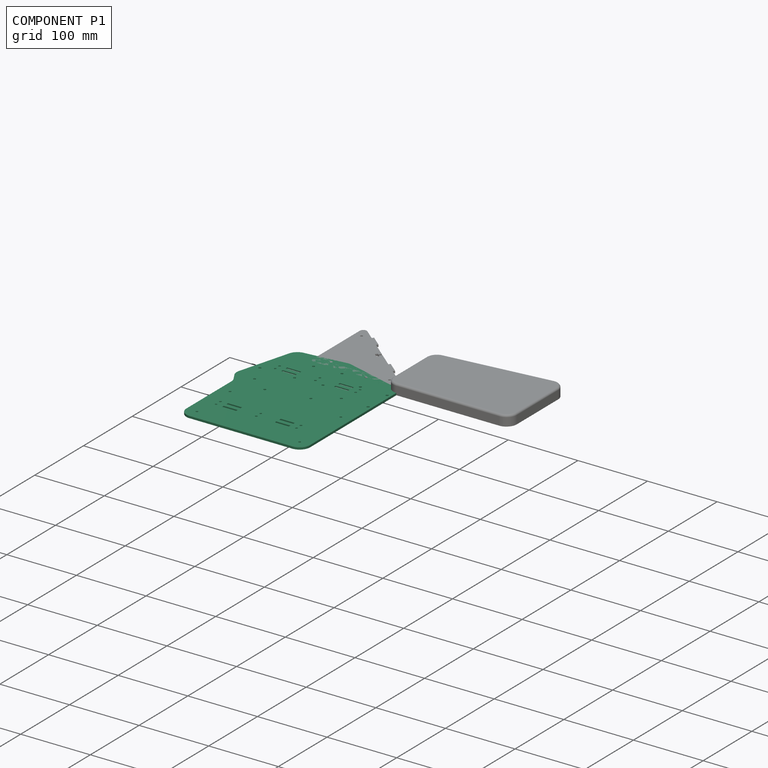
[diagram: component P1 — assembled]
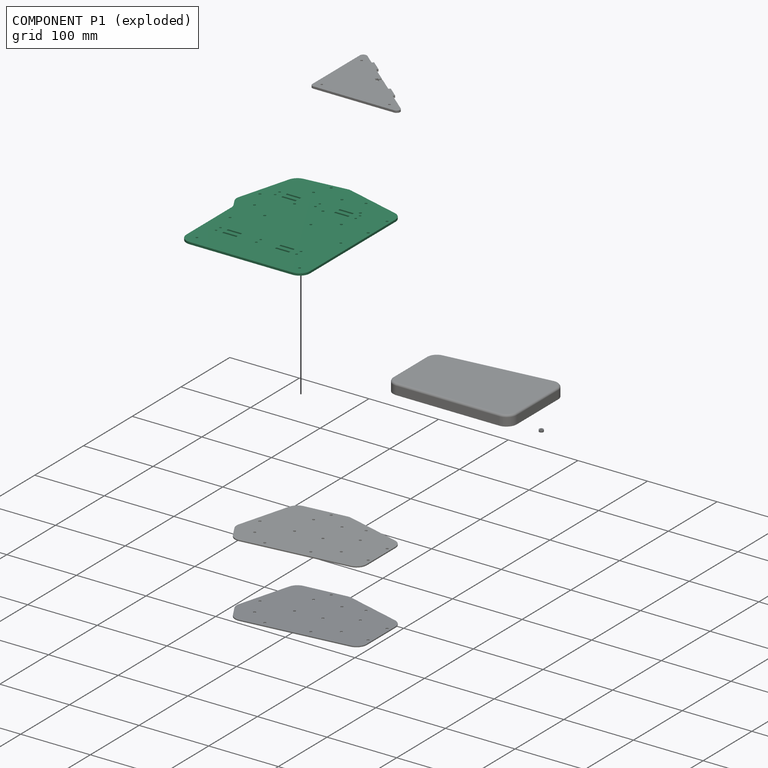
[diagram: component P1 — exploded]
COMPONENT P1 — recipe-attached ("BottomPanel_Right", modeled in this document).
Held by: resting contact with P0 (derived edge); resting contact with P2 (derived edge); resting contact with P3 (derived edge); resting contact with P4 (derived edge); resting contact with P5 (derived edge).
Construction recipe (the document's own serialized feature program — sketch geometry with constraints, then the solid features built on it; lengths are millimeters unless a unit is written):

FEATURE [PartDesign::CoordinateSystem] LCS_0003
  AttacherType = Attacher::AttachEngine3D
  MapMode = 2
  Support = -> [X_Axis004]
FEATURE [Sketcher::SketchObject] Sketch016
  FullyConstrained = true
  MapMode = 5
  Support = -> [XY_Plane004]
  expr: .Constraints.vertex_radius = Sketch.Constraints[29]
  expr: Constraints[6] = Sketch.Constraints[6]
  expr: Constraints[16] = Sketch.Constraints[16]
  expr: Constraints[8] = Sketch.Constraints[8]
  expr: Constraints[13] = Sketch.Constraints[13]
  expr: Constraints[7] = Sketch.Constraints[7]
  expr: Constraints[11] = Sketch.Constraints[11]
  expr: Constraints[14] = Sketch.Constraints[14]
  expr: Constraints[9] = Sketch.Constraints[9]
  expr: Constraints[12] = Sketch.Constraints[12]
  expr: Constraints[15] = Sketch.Constraints[15]
  expr: Constraints[5] = Sketch.Constraints[5]
  expr: Constraints[10] = Sketch.Constraints[10]
  expr: .Constraints.palm_rest_offset_y = 2 * <<PCB Outline S>>.Constraints.vertex_radius + 2mm
  expr: Constraints[73] = .Constraints.palm_rest_offset_y
  expr: Constraints[60] = <<Parameters>>.palm_rest_short_height
  sketch-geometry (34):
    g0: LineSegment StartX=-152 StartY=-1 StartZ=0 EndX=-172.287 EndY=-75.1 EndZ=0
    g1: LineSegment StartX=-172.287 StartY=-75.1 StartZ=0 EndX=-162.537 EndY=-91.9875 EndZ=0
    g2: LineSegment StartX=-162.537 StartY=-91.9875 StartZ=0 EndX=-15 EndY=-75.5 EndZ=0
    g3: LineSegment StartX=-15 StartY=-75.5 StartZ=0 EndX=-15 EndY=-17 EndZ=0
    g4: LineSegment StartX=-15 StartY=-17 StartZ=0 EndX=-93 EndY=5 EndZ=0
    g5: LineSegment StartX=-93 StartY=5 StartZ=0 EndX=-152 EndY=-1 EndZ=0
    g6: LineSegment StartX=-166.468 StartY=2.96101 StartZ=0 EndX=-186.755 EndY=-71.139 EndZ=0
    g7: LineSegment StartX=-153.518 StartY=13.923 StartZ=0 EndX=-94.5176 EndY=19.923 EndZ=0
    g8: LineSegment StartX=-88.9281 StartY=19.4367 StartZ=0 EndX=-10.9281 EndY=-2.56325 EndZ=0
    g9: LineSegment StartX=-2.58975e-11 StartY=-17 StartZ=0 EndX=-2.58975e-11 EndY=-75.5 EndZ=0
    g10: LineSegment StartX=-13.3341 StartY=-90.4072 StartZ=0 EndX=-160.872 EndY=-106.895 EndZ=0
    g11: LineSegment StartX=-185.278 StartY=-82.6 StartZ=0 EndX=-175.528 EndY=-99.4875 EndZ=0
    g12: ArcOfCircle CenterX=-152 CenterY=-1 CenterZ=0 NormalX=0 NormalY=0 NormalZ=1 AngleXU=0 Radius=15 StartAngle=1.67214 EndAngle=2.87436
    g13: ArcOfCircle CenterX=-93 CenterY=5 CenterZ=0 NormalX=0 NormalY=0 NormalZ=1 AngleXU=0 Radius=15 StartAngle=1.29589 EndAngle=1.67214
    g14: ArcOfCircle CenterX=-15 CenterY=-17 CenterZ=0 NormalX=0 NormalY=0 NormalZ=1 AngleXU=0 Radius=15 StartAngle=0 EndAngle=1.29589
    g15: ArcOfCircle CenterX=-15 CenterY=-75.5 CenterZ=0 NormalX=0 NormalY=0 NormalZ=1 AngleXU=0 Radius=15 StartAngle=4.82368 EndAngle=6.28319
    g16: ArcOfCircle CenterX=-162.537 CenterY=-91.9875 CenterZ=0 NormalX=0 NormalY=0 NormalZ=1 AngleXU=0 Radius=15 StartAngle=3.66519 EndAngle=4.82368
    g17: ArcOfCircle CenterX=-172.287 CenterY=-75.1 CenterZ=0 NormalX=0 NormalY=0 NormalZ=1 AngleXU=0 Radius=15 StartAngle=2.87436 EndAngle=3.66519
    g18: Circle CenterX=-162.537 CenterY=-91.9875 CenterZ=0 NormalX=0 NormalY=0 NormalZ=1 AngleXU=0 Radius=15
    g19: Circle CenterX=-15 CenterY=-75.5 CenterZ=0 NormalX=0 NormalY=0 NormalZ=1 AngleXU=0 Radius=15
    g20: ArcOfCircle CenterX=-162.537 CenterY=-191.987 CenterZ=0 NormalX=0 NormalY=0 NormalZ=1 AngleXU=0 Radius=15 StartAngle=3.14159 EndAngle=4.71239
    g21: ArcOfCircle CenterX=-15 CenterY=-191.987 CenterZ=0 NormalX=0 NormalY=0 NormalZ=1 AngleXU=0 Radius=15 StartAngle=4.71239 EndAngle=6.28318
    g22: LineSegment StartX=-177.537 StartY=-91.9875 StartZ=0 EndX=-177.537 EndY=-191.987 EndZ=0
    g23: LineSegment StartX=-162.537 StartY=-206.987 StartZ=0 EndX=-15 EndY=-206.987 EndZ=0
    g24: LineSegment StartX=-185.278 StartY=-82.6 StartZ=0 EndX=-179.547 EndY=-92.526 EndZ=0
    g25: LineSegment StartX=-177.537 StartY=-100.026 StartZ=0 EndX=-177.537 EndY=-191.987 EndZ=0
    g26: ArcOfCircle CenterX=-192.537 CenterY=-100.026 CenterZ=0 NormalX=0 NormalY=0 NormalZ=1 AngleXU=0 Radius=15 StartAngle=0 EndAngle=0.523599
    g27: LineSegment StartX=-2.58975e-11 StartY=-191.988 StartZ=0 EndX=-2.58975e-11 EndY=-75.5 EndZ=0
    g28: LineSegment StartX=-162.537 StartY=-91.9875 StartZ=0 EndX=-162.537 EndY=-123.987 EndZ=0
    g29: LineSegment StartX=-15 StartY=-75.5 StartZ=0 EndX=-15 EndY=-107.5 EndZ=0
    g30: Circle CenterX=-162.537 CenterY=-123.987 CenterZ=0 NormalX=0 NormalY=0 NormalZ=1 AngleXU=0 Radius=1.6
    g31: Circle CenterX=-15 CenterY=-107.5 CenterZ=0 NormalX=0 NormalY=0 NormalZ=1 AngleXU=0 Radius=1.6
    g32: Circle CenterX=-162.537 CenterY=-191.987 CenterZ=0 NormalX=0 NormalY=0 NormalZ=1 AngleXU=0 Radius=1.6
    g33: Circle CenterX=-15 CenterY=-191.987 CenterZ=0 NormalX=0 NormalY=0 NormalZ=1 AngleXU=0 Radius=1.6
  constraints (84):
    c: Coincident(g0,g1)
    c: Coincident(g1,g2)
    c: Coincident(g2,g3)
    c: Coincident(g3,g4)
    c: Coincident(g4,g5)
    c: DistanceX(g0) = -172.287
    c: DistanceY(g0) = -75.1
    c: DistanceX(g1) = -162.537
    c: DistanceY(g1) = -91.9875
    c: DistanceX(g2) = -15
    c: DistanceY(g2) = -75.5
    c: DistanceX(g3) = -15
    c: DistanceY(g3) = -17
    c: DistanceX(g4) = -93
    c: DistanceY(g4) = 5
    c: DistanceX(g0) = -152
    c: DistanceY(g0) = -1
    c: Vertical(g9)
    c: Coincident(g12,g0)
    c: Coincident(g13,g4)
    c: Coincident(g14,g3)
    c: Coincident(g15,g2)
    c: Coincident(g16,g1)
    c: Coincident(g17,g0)
    c: Equal(g12,g13)
    c: Equal(g13,g14)
    c: Equal(g14,g15)
    c: Equal(g15,g16)
    c: Equal(g16,g17)
    c: Radius(g12) = 15  'vertex_radius'
    c: Tangent(g12,g7) = 1.5708
    c: Tangent(g12,g6) = -1.5708
    c: Tangent(g6,g17) = -1.5708
    c: Tangent(g17,g11) = -1.5708
    c: Coincident(g15,g9)
    c: Tangent(g15,g10) = 1.5708
    c: Tangent(g16,g10) = 1.5708
    c: Tangent(g13,g8) = 1.5708
    c: Tangent(g13,g7) = 1.5708
    c: Tangent(g8,g14) = 1.5708
    c: Tangent(g9,g14) = 1.5708
    c: Tangent(g16,g11) = -1.5708
    c: Coincident(g12,g5)
    c: Coincident(g18,g1)
    c: PointOnObject(g10,g18)
    c: Coincident(g19,g2)
    c: PointOnObject(g10,g19)
    c: Equal(g20,g21)
    c: Equal(g21,g18)
    c: Vertical(g20,g1)
    c: Vertical(g2,g21)
    c: Horizontal(g20,g21)
    c: Tangent(g22,g18) = -1.5708
    c: Tangent(g20,g22) = -1.5708
    c: Tangent(g20,g23) = -1.5708
    c: Tangent(g21,g23) = -1.5708
    c: Coincident(g24,g17)
    c: Coincident(g25,g20)
    c: Tangent(g24,g26) = 1.5708
    c: Tangent(g25,g26) = 1.5708
    c: DistanceY(g20,g1) = 100
    c: PointOnObject(g24,g11)
    c: PointOnObject(g25,g22)
    c: Equal(g26,g18)
    c: Coincident(g27,g21)
    c: Coincident(g27,g9)
    c: Vertical(g27)
    c: DistanceX(g20,g21) = 147.537  'palm_rest_width'
    c: Coincident(g28,g1)
    c: Vertical(g28)
    c: Coincident(g29,g2)
    c: Vertical(g29)
    c: DistanceY(g28,g28) = 32  'palm_rest_offset_y'
    c: DistanceY(g29,g29) = 32
    c: DistanceY(g20,g28) = 68  'palm_rest_height_1'
    c: DistanceY(g21,g29) = 84.4875  'palm_rest_height_2'
    c: Equal(g30,g31)
    c: Equal(g31,g32)
    c: Equal(g32,g33)
    c: Coincident(g30,g28)
    c: Coincident(g32,g20)
    c: Coincident(g31,g29)
    c: Coincident(g33,g21)
    c: Diameter(g33) = 3.2
FEATURE [PartDesign::Plane] DatumPlane001
  AttachmentOffset = pos=(0,0,3) rot=(0,0,1;0rad)
  Length = 256.631
  MapMode = 5
  Placement = pos=(0,0,3) rot=(0,0,1;0rad)
  ResizeMode = 0
  Support = -> [XY_Plane004]
  Width = 276.367
FEATURE [Sketcher::SketchObject] Sketch017
  FullyConstrained = true
  MapMode = 5
  Placement = pos=(0,0,3) rot=(0,0,1;0rad)
  Support = -> [DatumPlane001]
  expr: .Constraints.hole_diameter = Sketch001.Constraints[25]
  expr: Constraints[0] = Sketch001.Constraints[0]
  expr: Constraints[34] = Sketch001.Constraints[34]
  expr: Constraints[36] = Sketch001.Constraints[36]
  expr: Constraints[1] = Sketch001.Constraints[1]
  expr: Constraints[5] = Sketch001.Constraints[5]
  expr: Constraints[2] = Sketch001.Constraints[2]
  expr: Constraints[4] = Sketch001.Constraints[4]
  expr: Constraints[29] = Sketch001.Constraints[29]
  expr: Constraints[38] = Sketch001.Constraints[38]
  expr: Constraints[26] = Sketch001.Constraints[26]
  expr: Constraints[3] = Sketch001.Constraints[3]
  expr: Constraints[32] = Sketch001.Constraints[32]
  expr: Constraints[19] = Sketch001.Constraints[19]
  expr: Constraints[23] = Sketch001.Constraints[23]
  expr: Constraints[31] = Sketch001.Constraints[31]
  expr: Constraints[30] = Sketch001.Constraints[30]
  expr: Constraints[21] = Sketch001.Constraints[21]
  expr: Constraints[28] = Sketch001.Constraints[28]
  expr: Constraints[41] = Sketch001.Constraints[41]
  expr: Constraints[22] = Sketch001.Constraints[22]
  expr: Constraints[27] = Sketch001.Constraints[27]
  expr: Constraints[24] = Sketch001.Constraints[24]
  expr: Constraints[20] = Sketch001.Constraints[20]
  expr: Constraints[33] = Sketch001.Constraints[33]
  expr: Constraints[35] = Sketch001.Constraints[35]
  expr: Constraints[37] = Sketch001.Constraints[37]
  expr: Constraints[39] = Sketch001.Constraints[39]
  expr: Constraints[40] = Sketch001.Constraints[40]
  sketch-geometry (14):
    g0: Circle CenterX=-5 CenterY=-26.75 CenterZ=0 NormalX=0 NormalY=0 NormalZ=1 AngleXU=0 Radius=1.75
    g1: Circle CenterX=-5 CenterY=-65.75 CenterZ=0 NormalX=0 NormalY=0 NormalZ=1 AngleXU=0 Radius=1.75
    g2: Circle CenterX=-44.25 CenterY=-25.75 CenterZ=0 NormalX=0 NormalY=0 NormalZ=1 AngleXU=0 Radius=1.75
    g3: Circle CenterX=-44.25 CenterY=-64.75 CenterZ=0 NormalX=0 NormalY=0 NormalZ=1 AngleXU=0 Radius=1.75
    g4: Circle CenterX=-54 CenterY=0 CenterZ=0 NormalX=0 NormalY=0 NormalZ=1 AngleXU=0 Radius=1.75
    g5: Circle CenterX=-83.25 CenterY=-7.75 CenterZ=0 NormalX=0 NormalY=0 NormalZ=1 AngleXU=0 Radius=1.75
    g6: Circle CenterX=-158.969 CenterY=-78.6687 CenterZ=0 NormalX=0 NormalY=0 NormalZ=1 AngleXU=0 Radius=1.75
    g7: Circle CenterX=-73.5 CenterY=-85.5 CenterZ=0 NormalX=0 NormalY=0 NormalZ=1 AngleXU=0 Radius=1.75
    g8: Circle CenterX=-132.25 CenterY=-96 CenterZ=0 NormalX=0 NormalY=0 NormalZ=1 AngleXU=0 Radius=1.75
    g9: Circle CenterX=-171.5 CenterY=-50 CenterZ=0 NormalX=0 NormalY=0 NormalZ=1 AngleXU=0 Radius=1.75
    g10: Circle CenterX=-112.5 CenterY=12 CenterZ=0 NormalX=0 NormalY=0 NormalZ=1 AngleXU=0 Radius=1.75
    g11: Circle CenterX=-122.25 CenterY=-49.25 CenterZ=0 NormalX=0 NormalY=0 NormalZ=1 AngleXU=0 Radius=1.75
    g12: Circle CenterX=-122.25 CenterY=-10.25 CenterZ=0 NormalX=0 NormalY=0 NormalZ=1 AngleXU=0 Radius=1.75
    g13: Circle CenterX=-83.25 CenterY=-46.75 CenterZ=0 NormalX=0 NormalY=0 NormalZ=1 AngleXU=0 Radius=1.75
  constraints (42):
    c: DistanceX(g0) = -5
    c: DistanceY(g0) = -26.75
    c: DistanceX(g1) = -5
    c: DistanceY(g1) = -65.75
    c: DistanceX(g2) = -44.25
    c: DistanceY(g2) = -25.75
    c: Equal(g0,g1)
    c: Equal(g1,g2)
    c: Equal(g2,g3)
    c: Equal(g3,g4)
    c: Equal(g4,g5)
    c: Equal(g5,g6)
    c: Equal(g6,g7)
    c: Equal(g7,g8)
    c: Equal(g8,g9)
    c: Equal(g9,g10)
    c: Equal(g10,g11)
    c: Equal(g11,g12)
    c: Equal(g12,g13)
    c: DistanceX(g3) = -44.25
    c: DistanceY(g3) = -64.75
    c: DistanceX(g5) = -83.25
    c: DistanceY(g5) = -7.75
    c: DistanceX(g13) = -83.25
    c: DistanceY(g13) = -46.75
    c: Diameter(g1) = 3.5  'hole_diameter'
    c: DistanceX(g12) = -122.25
    c: DistanceY(g12) = -10.25
    c: DistanceX(g11) = -122.25
    c: DistanceY(g11) = -49.25
    c: DistanceX(g4) = -54
    c: DistanceY(g4) = 0
    c: DistanceX(g7) = -73.5
    c: DistanceY(g7) = -85.5
    c: DistanceX(g10) = -112.5
    c: DistanceY(g10) = 12
    c: DistanceX(g8) = -132.25
    c: DistanceY(g8) = -96
    c: DistanceX(g9) = -171.5
    c: DistanceY(g9) = -50
    c: DistanceX(g6) = -158.969
    c: DistanceY(g6) = -78.6687
FEATURE [PartDesign::Pad] Pad003
  Direction = (1,1,1)
  Length = 10
  Length2 = 100
  Profile = -> Sketch016
  Type = 3
  UpToFace = -> DatumPlane001
FEATURE [PartDesign::Pocket] Pocket002
  BaseFeature = -> Pad003
  Length = 0
  Length2 = 100
  Profile = -> Sketch017
  Type = 3
  UpToFace = -> XY_Plane004
FEATURE [PartDesign::CoordinateSystem] Local_CS031  label="BottomPanel_Right_PCB_MountingHole_01"
  AttacherType = Attacher::AttachEngine3D
  MapMode = 45
  Placement = pos=(-171.5,-50,3) rot=(0,0,1;0.000368rad)
  Support = -> [Pocket002]
FEATURE [PartDesign::CoordinateSystem] Local_CS032  label="BottomPanel_Right_PalmRest_MountingHole_01"
  AttacherType = Attacher::AttachEngine3D
  MapMode = 45
  Placement = pos=(-162.537,-191.987,3) rot=(0,0,-1;0.000643rad)
  Support = -> [Pocket002]
FEATURE [PartDesign::CoordinateSystem] Local_CS033  label="BottomPanel_Right_PCB_MountingHole_02"
  AttacherType = Attacher::AttachEngine3D
  MapMode = 45
  Placement = pos=(-158.969,-78.6687,3) rot=(0,0,1;0.000736rad)
  Support = -> [Pocket002]
FEATURE [PartDesign::CoordinateSystem] Local_CS034  label="BottomPanel_Right_PCB_MountingHole_03"
  AttacherType = Attacher::AttachEngine3D
  MapMode = 45
  Placement = pos=(-132.25,-96,3) rot=(0,0,1;0.000246rad)
  Support = -> [Pocket002]
FEATURE [PartDesign::CoordinateSystem] Local_CS035  label="BottomPanel_Right_PCB_MountingHole_04"
  AttacherType = Attacher::AttachEngine3D
  MapMode = 45
  Placement = pos=(-122.25,-49.25,3) rot=(0,0,1;0.000368rad)
  Support = -> [Pocket002]
FEATURE [PartDesign::CoordinateSystem] Local_CS036  label="BottomPanel_Right_PCB_MountingHole_05"
  AttacherType = Attacher::AttachEngine3D
  MapMode = 45
  Placement = pos=(-122.25,-10.25,3) rot=(0,0,1;1.5e-05rad)
  Support = -> [Pocket002]
FEATURE [PartDesign::CoordinateSystem] Local_CS037  label="BottomPanel_Right_PCB_MountingHole_06"
  AttacherType = Attacher::AttachEngine3D
  MapMode = 45
  Placement = pos=(-112.5,12,3) rot=(0,0,-1;1.5e-05rad)
  Support = -> [Pocket002]
FEATURE [PartDesign::CoordinateSystem] Local_CS038  label="BottomPanel_Right_PCB_MountingHole_07"
  AttacherType = Attacher::AttachEngine3D
  MapMode = 45
  Placement = pos=(-83.25,-46.75,3) rot=(0,0,1;6.1e-05rad)
  Support = -> [Pocket002]
FEATURE [PartDesign::CoordinateSystem] Local_CS039  label="BottomPanel_Right_PCB_MountingHole_08"
  AttacherType = Attacher::AttachEngine3D
  MapMode = 45
  Placement = pos=(-83.25,-7.75,3) rot=(0,0,1;8e-06rad)
  Support = -> [Pocket002]
FEATURE [PartDesign::CoordinateSystem] Local_CS040  label="BottomPanel_Right_PCB_MountingHole_09"
  AttacherType = Attacher::AttachEngine3D
  MapMode = 45
  Placement = pos=(-73.5,-85.5,3) rot=(0,0,1;0.000123rad)
  Support = -> [Pocket002]
FEATURE [PartDesign::CoordinateSystem] Local_CS041  label="BottomPanel_Right_PCB_MountingHole_10"
  AttacherType = Attacher::AttachEngine3D
  MapMode = 45
  Placement = pos=(-54,0,3) rot=(0,0,1;0rad)
  Support = -> [Pocket002]
FEATURE [PartDesign::CoordinateSystem] Local_CS042  label="BottomPanel_Right_PCB_MountingHole_11"
  AttacherType = Attacher::AttachEngine3D
  MapMode = 45
  Placement = pos=(-44.25,-64.75,3) rot=(0,0,1;3.1e-05rad)
  Support = -> [Pocket002]
FEATURE [PartDesign::CoordinateSystem] Local_CS043  label="BottomPanel_Right_PCB_MountingHole_12"
  AttacherType = Attacher::AttachEngine3D
  MapMode = 45
  Placement = pos=(-44.25,-25.75,3) rot=(0,0,1;3.1e-05rad)
  Support = -> [Pocket002]
FEATURE [PartDesign::CoordinateSystem] Local_CS044  label="BottomPanel_Right_PCB_MountingHole_13"
  AttacherType = Attacher::AttachEngine3D
  MapMode = 45
  Placement = pos=(-5,-65.75,3) rot=(0,0,1;1.5e-05rad)
  Support = -> [Pocket002]
FEATURE [PartDesign::CoordinateSystem] Local_CS045  label="BottomPanel_Right_PCB_MountingHole_14"
  AttacherType = Attacher::AttachEngine3D
  MapMode = 45
  Placement = pos=(-5,-26.75,3) rot=(0,0,1;4e-06rad)
  Support = -> [Pocket002]
FEATURE [Sketcher::SketchObject] Sketch022  label="TentingStand_Mount_S"
  ExternalGeometry = -> [Sketch016,Sketch017]
  FullyConstrained = true
  MapMode = 5
  Support = -> [XY_Plane004]
  expr: Constraints[37] = .Constraints.stand_offset
  expr: Constraints[83] = .Constraints.tab_width
  expr: Constraints[103] = .Constraints.outer_hole_offset
  expr: Constraints[166] = sqrt(2 * 0.05mm * 0.05mm)
  sketch-geometry (110):
    g0: LineSegment StartX=-175.697 StartY=-151.987 StartZ=0 EndX=0 EndY=-151.987 EndZ=0
    g1: LineSegment StartX=0 StartY=-151.987 StartZ=0 EndX=0 EndY=-154.987 EndZ=0
    g2: LineSegment StartX=0 StartY=-154.987 StartZ=0 EndX=-175.697 EndY=-154.987 EndZ=0
    g3: LineSegment StartX=-175.697 StartY=-154.987 StartZ=0 EndX=-175.697 EndY=-151.987 EndZ=0
    g4: LineSegment StartX=-175.697 StartY=-160.987 StartZ=0 EndX=0 EndY=-160.987 EndZ=0
    g5: LineSegment StartX=0 StartY=-160.987 StartZ=0 EndX=0 EndY=-163.987 EndZ=0
    g6: LineSegment StartX=0 StartY=-163.987 StartZ=0 EndX=-175.697 EndY=-163.987 EndZ=0
    g7: LineSegment StartX=-175.697 StartY=-163.987 StartZ=0 EndX=-175.697 EndY=-160.987 EndZ=0
    g8: LineSegment StartX=-175.697 StartY=-30.75 StartZ=0 EndX=0 EndY=-30.75 EndZ=0
    g9: LineSegment StartX=0 StartY=-30.75 StartZ=0 EndX=0 EndY=-33.75 EndZ=0
    g10: LineSegment StartX=0 StartY=-33.75 StartZ=0 EndX=-175.697 EndY=-33.75 EndZ=0
    g11: LineSegment StartX=-175.697 StartY=-33.75 StartZ=0 EndX=-175.697 EndY=-30.75 EndZ=0
    g12: LineSegment StartX=-175.697 StartY=-39.75 StartZ=0 EndX=0 EndY=-39.75 EndZ=0
    g13: LineSegment StartX=0 StartY=-39.75 StartZ=0 EndX=0 EndY=-42.75 EndZ=0
    g14: LineSegment StartX=0 StartY=-42.75 StartZ=0 EndX=-175.697 EndY=-42.75 EndZ=0
    g15: LineSegment StartX=-175.697 StartY=-42.75 StartZ=0 EndX=-175.697 EndY=-39.75 EndZ=0
    g16: LineSegment StartX=-175.697 StartY=-36.75 StartZ=0 EndX=0 EndY=-36.75 EndZ=0
    g17: LineSegment StartX=-175.697 StartY=-26.75 StartZ=0 EndX=0 EndY=-26.75 EndZ=0
    g18: LineSegment StartX=-175.697 StartY=-46.75 StartZ=0 EndX=0 EndY=-46.75 EndZ=0
    g19: LineSegment StartX=-177.537 StartY=-123.987 StartZ=0 EndX=0 EndY=-123.987 EndZ=0
    g20: LineSegment StartX=-177.537 StartY=-191.987 StartZ=0 EndX=0 EndY=-191.987 EndZ=0
    g21: LineSegment StartX=-177.537 StartY=-157.987 StartZ=0 EndX=0 EndY=-157.987 EndZ=0
    g22: LineSegment StartX=-145.697 StartY=-30.75 StartZ=0 EndX=-145.697 EndY=-163.987 EndZ=0
    g23: LineSegment StartX=-50 StartY=-30.75 StartZ=0 EndX=-50 EndY=-163.987 EndZ=0
    g24: LineSegment StartX=-125.697 StartY=-30.75 StartZ=0 EndX=-125.697 EndY=-163.987 EndZ=0
    g25: LineSegment StartX=-70 StartY=-30.75 StartZ=0 EndX=-70 EndY=-163.987 EndZ=0
    g26: LineSegment StartX=-155.697 StartY=-32.25 StartZ=0 EndX=-145.697 EndY=-32.25 EndZ=0
    g27: LineSegment StartX=-155.697 StartY=-41.25 StartZ=0 EndX=-145.697 EndY=-41.25 EndZ=0
    g28: LineSegment StartX=-155.697 StartY=-153.487 StartZ=0 EndX=-145.697 EndY=-153.487 EndZ=0
    g29: LineSegment StartX=-155.697 StartY=-162.487 StartZ=0 EndX=-145.697 EndY=-162.487 EndZ=0
    g30: LineSegment StartX=-50 StartY=-32.25 StartZ=0 EndX=-40 EndY=-32.25 EndZ=0
    g31: LineSegment StartX=-50 StartY=-41.25 StartZ=0 EndX=-40 EndY=-41.25 EndZ=0
    g32: LineSegment StartX=-50 StartY=-153.487 StartZ=0 EndX=-40 EndY=-153.487 EndZ=0
    g33: LineSegment StartX=-50 StartY=-162.487 StartZ=0 EndX=-40 EndY=-162.487 EndZ=0
    g34: Circle CenterX=-155.697 CenterY=-32.25 CenterZ=0 NormalX=0 NormalY=0 NormalZ=1 AngleXU=0 Radius=1.55
    g35: Circle CenterX=-155.697 CenterY=-41.25 CenterZ=0 NormalX=0 NormalY=0 NormalZ=1 AngleXU=0 Radius=1.55
    g36: Circle CenterX=-40 CenterY=-32.25 CenterZ=0 NormalX=0 NormalY=0 NormalZ=1 AngleXU=0 Radius=1.55
    g37: Circle CenterX=-40 CenterY=-41.25 CenterZ=0 NormalX=0 NormalY=0 NormalZ=1 AngleXU=0 Radius=1.55
    g38: Circle CenterX=-155.697 CenterY=-153.487 CenterZ=0 NormalX=0 NormalY=0 NormalZ=1 AngleXU=0 Radius=1.55
    g39: Circle CenterX=-155.697 CenterY=-162.487 CenterZ=0 NormalX=0 NormalY=0 NormalZ=1 AngleXU=0 Radius=1.55
    g40: Circle CenterX=-40 CenterY=-153.487 CenterZ=0 NormalX=0 NormalY=0 NormalZ=1 AngleXU=0 Radius=1.55
    g41: Circle CenterX=-40 CenterY=-162.487 CenterZ=0 NormalX=0 NormalY=0 NormalZ=1 AngleXU=0 Radius=1.55
    g42: LineSegment StartX=-125.697 StartY=-32.25 StartZ=0 EndX=-70 EndY=-32.25 EndZ=0
    g43: Circle CenterX=-97.8486 CenterY=-32.25 CenterZ=0 NormalX=0 NormalY=0 NormalZ=1 AngleXU=0 Radius=1.55
    g44: LineSegment StartX=-125.697 StartY=-41.25 StartZ=0 EndX=-70 EndY=-41.25 EndZ=0
    g45: LineSegment StartX=-125.697 StartY=-153.487 StartZ=0 EndX=-70 EndY=-153.487 EndZ=0
    g46: LineSegment StartX=-70 StartY=-162.487 StartZ=0 EndX=-125.697 EndY=-162.487 EndZ=0
    g47: Circle CenterX=-97.8486 CenterY=-41.25 CenterZ=0 NormalX=0 NormalY=0 NormalZ=1 AngleXU=0 Radius=1.55
    g48: Circle CenterX=-97.8486 CenterY=-153.487 CenterZ=0 NormalX=0 NormalY=0 NormalZ=1 AngleXU=0 Radius=1.55
    g49: Circle CenterX=-97.8486 CenterY=-162.487 CenterZ=0 NormalX=0 NormalY=0 NormalZ=1 AngleXU=0 Radius=1.55
    g50: LineSegment StartX=-145.747 StartY=-30.7 StartZ=0 EndX=-125.647 EndY=-30.7 EndZ=0
    g51: LineSegment StartX=-125.647 StartY=-30.7 StartZ=0 EndX=-125.647 EndY=-33.8 EndZ=0
    g52: LineSegment StartX=-125.647 StartY=-33.8 StartZ=0 EndX=-145.747 EndY=-33.8 EndZ=0
    g53: LineSegment StartX=-145.747 StartY=-33.8 StartZ=0 EndX=-145.747 EndY=-30.7 EndZ=0
    g54: LineSegment StartX=-145.747 StartY=-30.7 StartZ=0 EndX=-145.697 EndY=-30.75 EndZ=0
    g55: GeomPoint X=-125.697 Y=-33.75 Z=0
    g56: LineSegment StartX=-125.647 StartY=-33.8 StartZ=0 EndX=-125.697 EndY=-33.75 EndZ=0
    g57: GeomPoint X=-145.697 Y=-39.75 Z=0
    g58: GeomPoint X=-125.697 Y=-42.75 Z=0
    g59: GeomPoint X=-50 Y=-33.75 Z=0
    g60: GeomPoint X=-70 Y=-39.75 Z=0
    g61: GeomPoint X=-50 Y=-42.75 Z=0
    g62: GeomPoint X=-145.697 Y=-151.987 Z=0
    g63: GeomPoint X=-145.697 Y=-160.987 Z=0
    g64: GeomPoint X=-125.697 Y=-154.987 Z=0
    g65: GeomPoint X=-70 Y=-160.987 Z=0
    g66: GeomPoint X=-70 Y=-151.987 Z=0
    g67: GeomPoint X=-50 Y=-154.987 Z=0
    g68: LineSegment StartX=-145.747 StartY=-39.7 StartZ=0 EndX=-145.697 EndY=-39.75 EndZ=0
    g69: LineSegment StartX=-125.697 StartY=-42.75 StartZ=0 EndX=-125.647 EndY=-42.8 EndZ=0
    g70: LineSegment StartX=-70.05 StartY=-30.7 StartZ=0 EndX=-70 EndY=-30.75 EndZ=0
    g71: LineSegment StartX=-70.05 StartY=-39.7 StartZ=0 EndX=-70 EndY=-39.75 EndZ=0
    g72: LineSegment StartX=-50 StartY=-42.75 StartZ=0 EndX=-49.95 EndY=-42.8 EndZ=0
    g73: LineSegment StartX=-50 StartY=-33.75 StartZ=0 EndX=-49.95 EndY=-33.8 EndZ=0
    g74: LineSegment StartX=-70.05 StartY=-151.937 StartZ=0 EndX=-70 EndY=-151.987 EndZ=0
    g75: LineSegment StartX=-70.05 StartY=-160.937 StartZ=0 EndX=-70 EndY=-160.987 EndZ=0
    g76: LineSegment StartX=-50 StartY=-163.987 StartZ=0 EndX=-49.95 EndY=-164.037 EndZ=0
    g77: LineSegment StartX=-50 StartY=-154.987 StartZ=0 EndX=-49.95 EndY=-155.037 EndZ=0
    g78: LineSegment StartX=-125.697 StartY=-154.987 StartZ=0 EndX=-125.647 EndY=-155.037 EndZ=0
    g79: LineSegment StartX=-145.747 StartY=-151.937 StartZ=0 EndX=-145.697 EndY=-151.987 EndZ=0
    g80: LineSegment StartX=-145.747 StartY=-160.937 StartZ=0 EndX=-145.697 EndY=-160.987 EndZ=0
    g81: LineSegment StartX=-125.697 StartY=-163.987 StartZ=0 EndX=-125.647 EndY=-164.037 EndZ=0
    g82: LineSegment StartX=-145.747 StartY=-39.7 StartZ=0 EndX=-125.647 EndY=-39.7 EndZ=0
    g83: LineSegment StartX=-125.647 StartY=-39.7 StartZ=0 EndX=-125.647 EndY=-42.8 EndZ=0
    g84: LineSegment StartX=-125.647 StartY=-42.8 StartZ=0 EndX=-145.747 EndY=-42.8 EndZ=0
    g85: LineSegment StartX=-145.747 StartY=-42.8 StartZ=0 EndX=-145.747 EndY=-39.7 EndZ=0
    g86: LineSegment StartX=-70.05 StartY=-30.7 StartZ=0 EndX=-49.95 EndY=-30.7 EndZ=0
    g87: LineSegment StartX=-49.95 StartY=-30.7 StartZ=0 EndX=-49.95 EndY=-33.8 EndZ=0
    g88: LineSegment StartX=-49.95 StartY=-33.8 StartZ=0 EndX=-70.05 EndY=-33.8 EndZ=0
    g89: LineSegment StartX=-70.05 StartY=-33.8 StartZ=0 EndX=-70.05 EndY=-30.7 EndZ=0
    g90: LineSegment StartX=-49.95 StartY=-42.8 StartZ=0 EndX=-70.05 EndY=-42.8 EndZ=0
    g91: LineSegment StartX=-70.05 StartY=-42.8 StartZ=0 EndX=-70.05 EndY=-39.7 EndZ=0
    g92: LineSegment StartX=-70.05 StartY=-39.7 StartZ=0 EndX=-49.95 EndY=-39.7 EndZ=0
    g93: LineSegment StartX=-49.95 StartY=-39.7 StartZ=0 EndX=-49.95 EndY=-42.8 EndZ=0
    g94: LineSegment StartX=-145.747 StartY=-151.937 StartZ=0 EndX=-125.647 EndY=-151.937 EndZ=0
    g95: LineSegment StartX=-125.647 StartY=-151.937 StartZ=0 EndX=-125.647 EndY=-155.037 EndZ=0
    g96: LineSegment StartX=-125.647 StartY=-155.037 StartZ=0 EndX=-145.747 EndY=-155.037 EndZ=0
    g97: LineSegment StartX=-145.747 StartY=-155.037 StartZ=0 EndX=-145.747 EndY=-151.937 EndZ=0
    g98: LineSegment StartX=-145.747 StartY=-160.937 StartZ=0 EndX=-125.647 EndY=-160.937 EndZ=0
    g99: LineSegment StartX=-125.647 StartY=-160.937 StartZ=0 EndX=-125.647 EndY=-164.037 EndZ=0
    g100: LineSegment StartX=-125.647 StartY=-164.037 StartZ=0 EndX=-145.747 EndY=-164.037 EndZ=0
    g101: LineSegment StartX=-145.747 StartY=-164.037 StartZ=0 EndX=-145.747 EndY=-160.937 EndZ=0
    g102: LineSegment StartX=-70.05 StartY=-151.937 StartZ=0 EndX=-49.95 EndY=-151.937 EndZ=0
    g103: LineSegment StartX=-49.95 StartY=-151.937 StartZ=0 EndX=-49.95 EndY=-155.037 EndZ=0
    g104: LineSegment StartX=-49.95 StartY=-155.037 StartZ=0 EndX=-70.05 EndY=-155.037 EndZ=0
    g105: LineSegment StartX=-70.05 StartY=-155.037 StartZ=0 EndX=-70.05 EndY=-151.937 EndZ=0
    g106: LineSegment StartX=-70.05 StartY=-160.937 StartZ=0 EndX=-49.95 EndY=-160.937 EndZ=0
    g107: LineSegment StartX=-49.95 StartY=-160.937 StartZ=0 EndX=-49.95 EndY=-164.037 EndZ=0
    g108: LineSegment StartX=-49.95 StartY=-164.037 StartZ=0 EndX=-70.05 EndY=-164.037 EndZ=0
    g109: LineSegment StartX=-70.05 StartY=-164.037 StartZ=0 EndX=-70.05 EndY=-160.937 EndZ=0
  constraints (302):
    c: Coincident(g0,g1)
    c: Coincident(g1,g2)
    c: Coincident(g2,g3)
    c: Coincident(g3,g0)
    c: Horizontal(g0)
    c: Horizontal(g2)
    c: Vertical(g1)
    c: Vertical(g3)
    c: Coincident(g4,g5)
    c: Coincident(g5,g6)
    c: Coincident(g6,g7)
    c: Coincident(g7,g4)
    c: Horizontal(g4)
    c: Horizontal(g6)
    c: Vertical(g5)
    c: Vertical(g7)
    c: Coincident(g8,g9)
    c: Coincident(g9,g10)
    c: Coincident(g10,g11)
    c: Coincident(g11,g8)
    c: Horizontal(g8)
    c: Horizontal(g10)
    c: Vertical(g9)
    c: Vertical(g11)
    c: Coincident(g12,g13)
    c: Coincident(g13,g14)
    c: Coincident(g14,g15)
    c: Coincident(g15,g12)
    c: Horizontal(g12)
    c: Horizontal(g14)
    c: Vertical(g13)
    c: Vertical(g15)
    c: Equal(g11,g15)
    c: Equal(g15,g3)
    c: Equal(g3,g7)
    c: DistanceY(g11,g11) = 3  'stand_material_thickness'
    c: DistanceY(g12,g10) = 6  'stand_offset'
    c: DistanceY(g4,g2) = 6
    c: Vertical(g12,g8)
    c: Vertical(g8,g0)
    c: Vertical(g0,g4)
    c: PointOnObject(g8,g-2)
    c: PointOnObject(g12,g-2)
    c: PointOnObject(g0,g-2)
    c: PointOnObject(g4,g-2)
    c: PointOnObject(g8,g-10)
    c: Symmetric(g9,g12,g16)
    c: Symmetric(g10,g12,g16)
    c: Horizontal(g17)
    c: Horizontal(g18)
    c: Symmetric(g17,g18,g16)
    c: PointOnObject(g17,g-2)
    c: PointOnObject(g18,g-2)
    c: PointOnObject(g-8,g18)
    c: Symmetric(g18,g17,g16)
    c: PointOnObject(g-6,g17)
    c: PointOnObject(g19,g-11)
    c: PointOnObject(g19,g-13)
    c: Horizontal(g19)
    c: Horizontal(g20)
    c: PointOnObject(g20,g-13)
    c: PointOnObject(g-3,g19)
    c: PointOnObject(g-4,g20)
    c: PointOnObject(g21,g-11)
    c: PointOnObject(g21,g-13)
    c: Symmetric(g19,g20,g21)
    c: Symmetric(g2,g4,g21)
    c: DistanceX(g8,g8) = 175.697  'tangent_length'
    c: PointOnObject(g22,g8)
    c: PointOnObject(g22,g6)
    c: Vertical(g22)
    c: PointOnObject(g23,g8)
    c: PointOnObject(g23,g6)
    c: Vertical(g23)
    c: DistanceX(g23,g5) = 50
    c: DistanceX(g6,g22) = 30
    c: PointOnObject(g24,g8)
    c: PointOnObject(g24,g6)
    c: Vertical(g24)
    c: PointOnObject(g25,g8)
    c: PointOnObject(g25,g6)
    c: Vertical(g25)
    c: DistanceX(g25,g23) = 20  'tab_width'
    c: DistanceX(g22,g24) = 20
    c: PointOnObject(g26,g22)
    c: PointOnObject(g27,g22)
    c: PointOnObject(g28,g22)
    c: PointOnObject(g29,g22)
    c: Vertical(g28,g29)
    c: Vertical(g29,g26)
    c: Vertical(g26,g27)
    c: Symmetric(g12,g14,g27)
    c: Symmetric(g8,g10,g26)
    c: Symmetric(g0,g2,g28)
    c: Symmetric(g4,g6,g29)
    c: PointOnObject(g30,g23)
    c: PointOnObject(g31,g23)
    c: PointOnObject(g32,g23)
    c: PointOnObject(g33,g23)
    c: Vertical(g30,g31)
    c: Vertical(g31,g33)
    c: Vertical(g33,g32)
    c: DistanceX(g33,g33) = 10  'outer_hole_offset'
    c: DistanceX(g29,g29) = 10
    c: Symmetric(g0,g1,g32)
    c: Symmetric(g4,g5,g33)
    c: Symmetric(g8,g9,g30)
    c: Symmetric(g12,g13,g31)
    c: Coincident(g34,g26)
    c: Coincident(g35,g27)
    c: Coincident(g36,g30)
    c: Coincident(g37,g31)
    c: Coincident(g38,g28)
    c: Coincident(g39,g29)
    c: Coincident(g40,g32)
    c: Coincident(g41,g33)
    c: PointOnObject(g42,g24)
    c: PointOnObject(g42,g25)
    c: Horizontal(g42)
    c: Horizontal(g26,g42)
    c: Symmetric(g42,g42,g43)
    c: PointOnObject(g44,g24)
    c: PointOnObject(g44,g25)
    c: Horizontal(g44)
    c: PointOnObject(g45,g24)
    c: PointOnObject(g45,g25)
    c: Horizontal(g45)
    c: PointOnObject(g46,g25)
    c: PointOnObject(g46,g24)
    c: Horizontal(g46)
    c: Horizontal(g29,g46)
    c: Horizontal(g45,g28)
    c: Horizontal(g27,g44)
    c: Symmetric(g46,g46,g49)
    c: Symmetric(g45,g45,g48)
    c: Symmetric(g44,g44,g47)
    c: Equal(g34,g35)
    c: Equal(g35,g47)
    c: Equal(g47,g43)
    c: Equal(g43,g36)
    c: Equal(g36,g37)
    c: Equal(g37,g38)
    c: Equal(g38,g39)
    c: Equal(g39,g48)
    c: Equal(g48,g49)
    c: Equal(g49,g40)
    c: Equal(g40,g41)
    c: Diameter(g47) = 3.1  'mounting_hole_diameter'
    c: DistanceX(g23,g8) = 50  'first_tab_offset'
    c: DistanceX(g24,g8) = 125.697  'second_tab_offset'
    c: Coincident(g51,g52)
    c: Coincident(g52,g53)
    c: Coincident(g53,g50)
    c: Horizontal(g50)
    c: Horizontal(g52)
    c: Vertical(g51)
    c: Vertical(g53)
    c: Coincident(g51,g50)
    c: Coincident(g54,g50)
    c: Coincident(g54,g22)
    c: PointOnObject(g55,g24)
    c: PointOnObject(g55,g10)
    c: Coincident(g56,g51)
    c: Coincident(g56,g55)
    c: Angle(g8,g54) = 2.35619
    c: Angle(g56,g10) = 0.785398
    c: Distance(g54) = 0.0707107
    c: PointOnObject(g57,g22)
    c: PointOnObject(g58,g24)
    c: PointOnObject(g59,g23)
    c: PointOnObject(g60,g25)
    c: PointOnObject(g61,g23)
    c: PointOnObject(g62,g22)
    c: PointOnObject(g63,g22)
    c: PointOnObject(g64,g24)
    c: PointOnObject(g65,g25)
    c: PointOnObject(g66,g25)
    c: PointOnObject(g67,g23)
    c: PointOnObject(g67,g2)
    c: PointOnObject(g66,g0)
    c: PointOnObject(g65,g4)
    c: PointOnObject(g60,g12)
    c: PointOnObject(g59,g10)
    c: PointOnObject(g61,g14)
    c: PointOnObject(g62,g0)
    c: PointOnObject(g64,g2)
    c: PointOnObject(g63,g4)
    c: PointOnObject(g58,g14)
    c: PointOnObject(g57,g12)
    c: Coincident(g68,g57)
    c: Coincident(g69,g58)
    c: Angle(g69,g14) = 0.785398
    c: Angle(g12,g68) = 2.35619
    c: Coincident(g70,g25)
    c: Coincident(g71,g60)
    c: Coincident(g72,g61)
    c: Coincident(g73,g59)
    c: Coincident(g74,g66)
    c: Coincident(g75,g65)
    c: Coincident(g76,g23)
    c: Coincident(g77,g67)
    c: Coincident(g78,g64)
    c: Coincident(g79,g62)
    c: Coincident(g80,g63)
    c: Coincident(g81,g24)
    c: Equal(g79,g80)
    c: Equal(g80,g78)
    c: Equal(g78,g81)
    c: Equal(g81,g77)
    c: Equal(g77,g76)
    c: Equal(g76,g75)
    c: Equal(g75,g74)
    c: Equal(g74,g70)
    c: Equal(g70,g71)
    c: Equal(g71,g73)
    c: Equal(g73,g72)
    c: Equal(g72,g68)
    c: Equal(g68,g69)
    c: Equal(g69,g56)
    c: Equal(g56,g54)
    c: Coincident(g82,g83)
    c: Coincident(g83,g84)
    c: Coincident(g84,g85)
    c: Coincident(g85,g82)
    c: Horizontal(g82)
    c: Horizontal(g84)
    c: Vertical(g83)
    c: Vertical(g85)
    c: Coincident(g82,g68)
    c: Coincident(g83,g69)
    c: Angle(g70,g8) = 0.785398
    c: Angle(g10,g73) = 2.35619
    c: Coincident(g86,g87)
    c: Coincident(g87,g88)
    c: Coincident(g88,g89)
    c: Coincident(g89,g86)
    c: Horizontal(g86)
    c: Horizontal(g88)
    c: Vertical(g87)
    c: Vertical(g89)
    c: Coincident(g86,g70)
    c: Coincident(g87,g73)
    c: Angle(g71,g12) = 0.785398
    c: Angle(g14,g72) = 2.35619
    c: Coincident(g90,g91)
    c: Coincident(g91,g92)
    c: Coincident(g92,g93)
    c: Coincident(g93,g90)
    c: Horizontal(g90)
    c: Horizontal(g92)
    c: Vertical(g91)
    c: Vertical(g93)
    c: Coincident(g90,g72)
    c: Coincident(g91,g71)
    c: Angle(g0,g79) = 2.35619
    c: Coincident(g94,g95)
    c: Coincident(g95,g96)
    c: Coincident(g96,g97)
    c: Coincident(g97,g94)
    c: Horizontal(g94)
    c: Horizontal(g96)
    c: Vertical(g95)
    c: Vertical(g97)
    c: Coincident(g94,g79)
    c: Coincident(g95,g78)
    c: Angle(g78,g2) = 0.785398
    c: Angle(g4,g80) = 2.35619
    c: Coincident(g98,g99)
    c: Coincident(g99,g100)
    c: Coincident(g100,g101)
    c: Coincident(g101,g98)
    c: Horizontal(g98)
    c: Horizontal(g100)
    c: Vertical(g99)
    c: Vertical(g101)
    c: Coincident(g98,g80)
    c: Coincident(g99,g81)
    c: Angle(g81,g6) = 0.785398
    c: Angle(g74,g0) = 0.785398
    c: Coincident(g102,g103)
    c: Coincident(g103,g104)
    c: Coincident(g104,g105)
    c: Coincident(g105,g102)
    c: Horizontal(g102)
    c: Horizontal(g104)
    c: Vertical(g103)
    c: Vertical(g105)
    c: Coincident(g102,g74)
    c: Coincident(g103,g77)
    c: Angle(g2,g77) = 2.35619
    c: Angle(g75,g4) = 0.785398
    c: Coincident(g106,g107)
    c: Coincident(g107,g108)
    c: Coincident(g108,g109)
    c: Coincident(g109,g106)
    c: Horizontal(g106)
    c: Horizontal(g108)
    c: Vertical(g107)
    c: Vertical(g109)
    c: Coincident(g106,g75)
    c: Coincident(g107,g76)
    c: Angle(g6,g76) = 2.35619
FEATURE [PartDesign::Pocket] Pocket004
  BaseFeature = -> Pocket002
  Length = 0
  Length2 = 100
  Profile = -> Sketch022
  Type = 3
  UpToFace = -> DatumPlane001
FEATURE [PartDesign::CoordinateSystem] Local_CS047  label="BottomPanel_Right_StandPanel_Tab_Rear_1"
  AttacherType = Attacher::AttachEngine3D
  AttachmentOffset = pos=(0,0,0) rot=(0,0,1;3.14159rad)
  MapMode = 45
  Placement = pos=(-60,-32.25,3) rot=(0,0,1;4.71239rad)
  Support = -> [Pocket004]
FEATURE [PartDesign::CoordinateSystem] Local_CS048  label="BottomPanel_Right_StandPanel_Tab_Front_1"
  AttacherType = Attacher::AttachEngine3D
  AttachmentOffset = pos=(0,0,0) rot=(0,0,1;3.14159rad)
  MapMode = 45
  Placement = pos=(-60,-153.487,3) rot=(0,0,1;4.71239rad)
  Support = -> [Pocket004]
FEATURE [PartDesign::Body] BottomPanel_Right
  Group = -> [LCS_0003,DatumPlane001,Sketch016,Sketch017,Pad003,Pocket002,Local_CS031,Local_CS033,Local_CS034,Local_CS035,Local_CS036,Local_CS037,Local_CS038,Local_CS039,Local_CS040,Local_CS041,Local_CS042,Local_CS043,Local_CS044,Local_CS045,Local_CS032,Sketch022,Pocket004,Local_CS047,Local_CS048]
  Origin = -> Origin004
  Tip = -> Pocket004
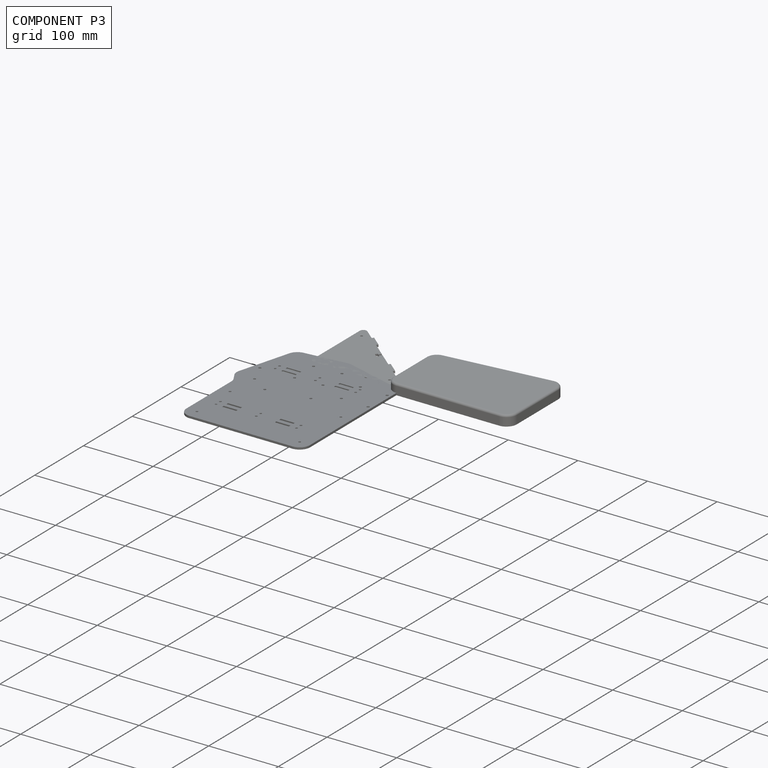
[diagram: component P3 — assembled]
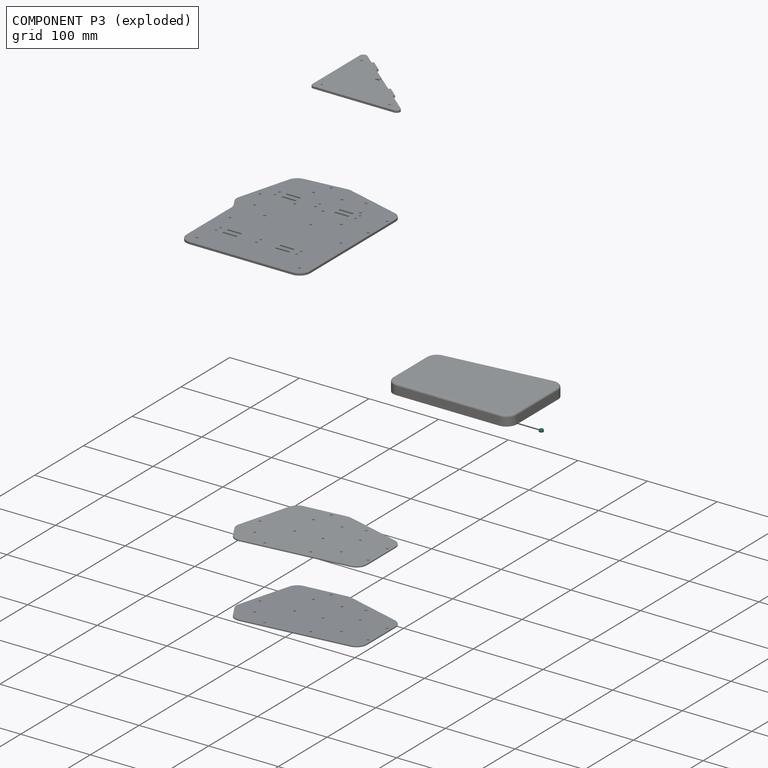
[diagram: component P3 — exploded]
COMPONENT P3 — recipe-attached ("Spacer_3mm", modeled in this document).
Held by: resting contact with P0 (derived edge); resting contact with P1 (derived edge); resting contact with P2 (derived edge); resting contact with P4 (derived edge); resting contact with P5 (derived edge).
Construction recipe (the document's own serialized feature program — sketch geometry with constraints, then the solid features built on it; lengths are millimeters unless a unit is written):

FEATURE [PartDesign::CoordinateSystem] LCS_0002  label="Spacer_3mm_Bottom"
  AttacherType = Attacher::AttachEngine3D
  MapMode = 2
  Support = -> [X_Axis003]
FEATURE [Sketcher::SketchObject] Sketch015
  FullyConstrained = true
  MapMode = 5
  Support = -> [XY_Plane003]
  sketch-geometry (2):
    g0: Circle CenterX=0 CenterY=0 CenterZ=0 NormalX=0 NormalY=0 NormalZ=1 AngleXU=0 Radius=3
    g1: Circle CenterX=0 CenterY=0 CenterZ=0 NormalX=0 NormalY=0 NormalZ=1 AngleXU=0 Radius=1.55
  constraints (4):
    c: Coincident(g-1,g1)
    c: Coincident(g-1,g0)
    c: Diameter(g1) = 3.1
    c: Diameter(g0) = 6
FEATURE [PartDesign::Plane] DatumPlane  label="Spacer_3mm_Height"
  AttachmentOffset = pos=(0,0,3) rot=(0,0,1;0rad)
  Length = 60
  MapMode = 2
  Placement = pos=(0,0,3) rot=(0,0,1;0rad)
  ResizeMode = 0
  Support = -> [XY_Plane003]
  Width = 60
FEATURE [PartDesign::Pad] Pad002
  Direction = (1,1,1)
  Length = 3
  Length2 = 100
  Profile = -> Sketch015
  Type = 3
  UpToFace = -> DatumPlane [Plane]
FEATURE [PartDesign::CoordinateSystem] Local_CS  label="Spacer_3mm_Top"
  AttacherType = Attacher::AttachEngine3D
  MapMode = 5
  Placement = pos=(0,0,3) rot=(0,0,1;0rad)
  Support = -> [DatumPlane]
FEATURE [PartDesign::Body] Spacer_3mm
  Group = -> [DatumPlane,Sketch015,Pad002,LCS_0002,Local_CS]
  Origin = -> Origin003
  Tip = -> Pad002
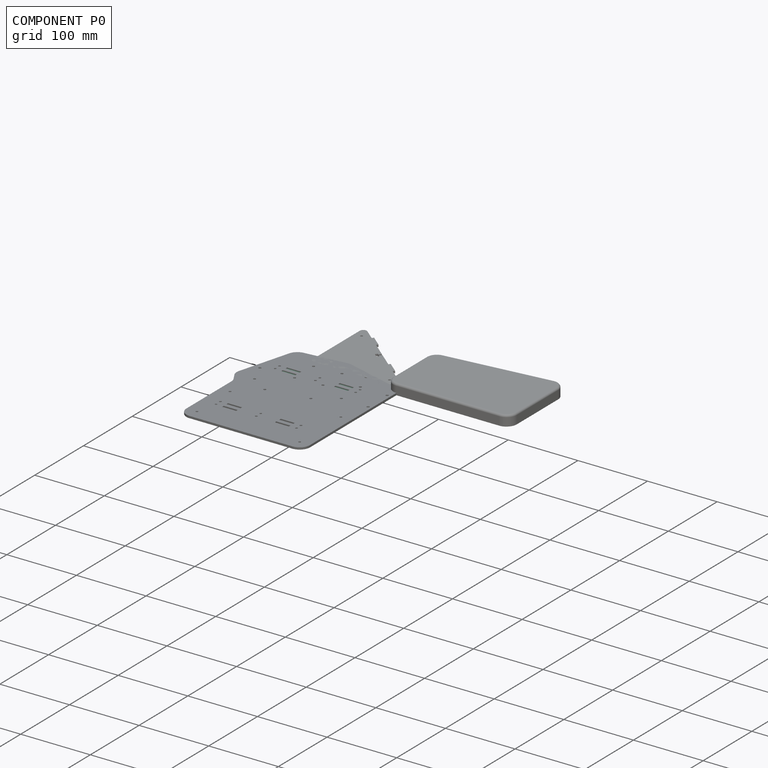
[diagram: component P0 — assembled]
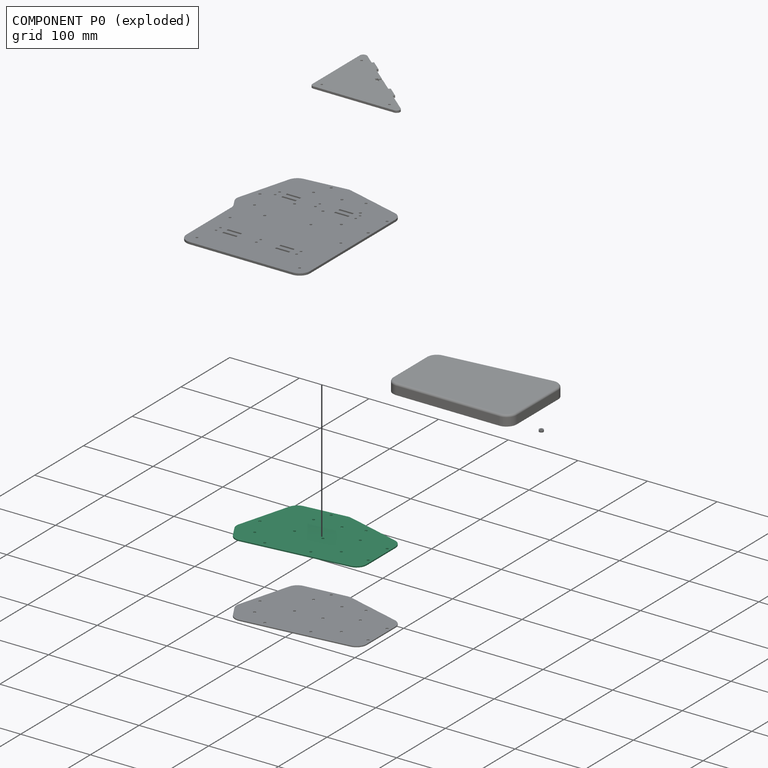
[diagram: component P0 — exploded]
COMPONENT P0 — recipe-attached ("PCB_Right", modeled in this document).
Held by: resting contact with P1 (derived edge); resting contact with P2 (derived edge); resting contact with P3 (derived edge); resting contact with P4 (derived edge); resting contact with P5 (derived edge).
Construction recipe (the document's own serialized feature program — sketch geometry with constraints, then the solid features built on it; lengths are millimeters unless a unit is written):

FEATURE [Sketcher::SketchObject] Sketch011
  FullyConstrained = true
  MapMode = 5
  Support = -> [XY_Plane001]
  expr: Constraints[15] = Sketch.Constraints[15]
  expr: Constraints[12] = Sketch.Constraints[12]
  expr: Constraints[11] = Sketch.Constraints[11]
  expr: Constraints[14] = Sketch.Constraints[14]
  expr: Constraints[9] = Sketch.Constraints[9]
  expr: Constraints[16] = Sketch.Constraints[16]
  expr: Constraints[8] = Sketch.Constraints[8]
  expr: Constraints[13] = Sketch.Constraints[13]
  expr: Constraints[7] = Sketch.Constraints[7]
  expr: .Constraints.vertex_radius = Sketch.Constraints[29]
  expr: Constraints[6] = Sketch.Constraints[6]
  expr: Constraints[10] = Sketch.Constraints[10]
  expr: Constraints[5] = Sketch.Constraints[5]
  sketch-geometry (18):
    g0: LineSegment StartX=-152 StartY=-1 StartZ=0 EndX=-172.287 EndY=-75.1 EndZ=0
    g1: LineSegment StartX=-172.287 StartY=-75.1 StartZ=0 EndX=-162.537 EndY=-91.9875 EndZ=0
    g2: LineSegment StartX=-162.537 StartY=-91.9875 StartZ=0 EndX=-15 EndY=-75.5 EndZ=0
    g3: LineSegment StartX=-15 StartY=-75.5 StartZ=0 EndX=-15 EndY=-17 EndZ=0
    g4: LineSegment StartX=-15 StartY=-17 StartZ=0 EndX=-93 EndY=5 EndZ=0
    g5: LineSegment StartX=-93 StartY=5 StartZ=0 EndX=-152 EndY=-1 EndZ=0
    g6: LineSegment StartX=-166.468 StartY=2.96101 StartZ=0 EndX=-186.755 EndY=-71.139 EndZ=0
    g7: LineSegment StartX=-153.518 StartY=13.923 StartZ=0 EndX=-94.5176 EndY=19.923 EndZ=0
    g8: LineSegment StartX=-88.9281 StartY=19.4367 StartZ=0 EndX=-10.9281 EndY=-2.56325 EndZ=0
    g9: LineSegment StartX=-8.9e-15 StartY=-17 StartZ=0 EndX=-8.9e-15 EndY=-75.5 EndZ=0
    g10: LineSegment StartX=-13.3341 StartY=-90.4072 StartZ=0 EndX=-160.872 EndY=-106.895 EndZ=0
    g11: LineSegment StartX=-185.278 StartY=-82.6 StartZ=0 EndX=-175.528 EndY=-99.4875 EndZ=0
    g12: ArcOfCircle CenterX=-152 CenterY=-1 CenterZ=0 NormalX=0 NormalY=0 NormalZ=1 AngleXU=0 Radius=15 StartAngle=1.67214 EndAngle=2.87436
    g13: ArcOfCircle CenterX=-93 CenterY=5 CenterZ=0 NormalX=0 NormalY=0 NormalZ=1 AngleXU=0 Radius=15 StartAngle=1.29589 EndAngle=1.67214
    g14: ArcOfCircle CenterX=-15 CenterY=-17 CenterZ=0 NormalX=0 NormalY=0 NormalZ=1 AngleXU=0 Radius=15 StartAngle=0 EndAngle=1.29589
    g15: ArcOfCircle CenterX=-15 CenterY=-75.5 CenterZ=0 NormalX=0 NormalY=0 NormalZ=1 AngleXU=0 Radius=15 StartAngle=4.82368 EndAngle=6.28319
    g16: ArcOfCircle CenterX=-162.537 CenterY=-91.9875 CenterZ=0 NormalX=0 NormalY=0 NormalZ=1 AngleXU=0 Radius=15 StartAngle=3.66519 EndAngle=4.82368
    g17: ArcOfCircle CenterX=-172.287 CenterY=-75.1 CenterZ=0 NormalX=0 NormalY=0 NormalZ=1 AngleXU=0 Radius=15 StartAngle=2.87436 EndAngle=3.66519
  constraints (43):
    c: Coincident(g0,g1)
    c: Coincident(g1,g2)
    c: Coincident(g2,g3)
    c: Coincident(g3,g4)
    c: Coincident(g4,g5)
    c: DistanceX(g0) = -172.287
    c: DistanceY(g0) = -75.1
    c: DistanceX(g1) = -162.537
    c: DistanceY(g1) = -91.9875
    c: DistanceX(g2) = -15
    c: DistanceY(g2) = -75.5
    c: DistanceX(g3) = -15
    c: DistanceY(g3) = -17
    c: DistanceX(g4) = -93
    c: DistanceY(g4) = 5
    c: DistanceX(g0) = -152
    c: DistanceY(g0) = -1
    c: Vertical(g9)
    c: Coincident(g12,g0)
    c: Coincident(g13,g4)
    c: Coincident(g14,g3)
    c: Coincident(g15,g2)
    c: Coincident(g16,g1)
    c: Coincident(g17,g0)
    c: Equal(g12,g13)
    c: Equal(g13,g14)
    c: Equal(g14,g15)
    c: Equal(g15,g16)
    c: Equal(g16,g17)
    c: Radius(g12) = 15  'vertex_radius'
    c: Tangent(g12,g7) = 1.5708
    c: Tangent(g12,g6) = -1.5708
    c: Tangent(g6,g17) = -1.5708
    c: Tangent(g17,g11) = -1.5708
    c: Coincident(g15,g9)
    c: Tangent(g15,g10) = 1.5708
    c: Tangent(g16,g10) = 1.5708
    c: Tangent(g13,g8) = 1.5708
    c: Tangent(g13,g7) = 1.5708
    c: Tangent(g8,g14) = 1.5708
    c: Tangent(g9,g14) = 1.5708
    c: Tangent(g16,g11) = -1.5708
    c: Coincident(g12,g5)
FEATURE [PartDesign::Pad] Pad
  Direction = (1,1,1)
  Length = 1.6
  Length2 = 100
  Profile = -> Sketch011
  Type = 0
FEATURE [Sketcher::SketchObject] Sketch012
  FullyConstrained = true
  MapMode = 5
  Support = -> [XY_Plane001]
  expr: Constraints[40] = Sketch001.Constraints[40]
  expr: Constraints[39] = Sketch001.Constraints[39]
  expr: Constraints[37] = Sketch001.Constraints[37]
  expr: Constraints[35] = Sketch001.Constraints[35]
  expr: Constraints[33] = Sketch001.Constraints[33]
  expr: Constraints[20] = Sketch001.Constraints[20]
  expr: Constraints[24] = Sketch001.Constraints[24]
  expr: Constraints[27] = Sketch001.Constraints[27]
  expr: Constraints[22] = Sketch001.Constraints[22]
  expr: Constraints[41] = Sketch001.Constraints[41]
  expr: Constraints[28] = Sketch001.Constraints[28]
  expr: Constraints[21] = Sketch001.Constraints[21]
  expr: Constraints[30] = Sketch001.Constraints[30]
  expr: Constraints[31] = Sketch001.Constraints[31]
  expr: Constraints[19] = Sketch001.Constraints[19]
  expr: Constraints[23] = Sketch001.Constraints[23]
  expr: Constraints[26] = Sketch001.Constraints[26]
  expr: Constraints[3] = Sketch001.Constraints[3]
  expr: Constraints[32] = Sketch001.Constraints[32]
  expr: Constraints[4] = Sketch001.Constraints[4]
  expr: Constraints[29] = Sketch001.Constraints[29]
  expr: Constraints[38] = Sketch001.Constraints[38]
  expr: Constraints[5] = Sketch001.Constraints[5]
  expr: Constraints[2] = Sketch001.Constraints[2]
  expr: Constraints[1] = Sketch001.Constraints[1]
  expr: .Constraints.hole_diameter = Sketch001.Constraints[25]
  expr: Constraints[0] = Sketch001.Constraints[0]
  expr: Constraints[34] = Sketch001.Constraints[34]
  expr: Constraints[36] = Sketch001.Constraints[36]
  sketch-geometry (14):
    g0: Circle CenterX=-5 CenterY=-26.75 CenterZ=0 NormalX=0 NormalY=0 NormalZ=1 AngleXU=0 Radius=1.75
    g1: Circle CenterX=-5 CenterY=-65.75 CenterZ=0 NormalX=0 NormalY=0 NormalZ=1 AngleXU=0 Radius=1.75
    g2: Circle CenterX=-44.25 CenterY=-25.75 CenterZ=0 NormalX=0 NormalY=0 NormalZ=1 AngleXU=0 Radius=1.75
    g3: Circle CenterX=-44.25 CenterY=-64.75 CenterZ=0 NormalX=0 NormalY=0 NormalZ=1 AngleXU=0 Radius=1.75
    g4: Circle CenterX=-54 CenterY=0 CenterZ=0 NormalX=0 NormalY=0 NormalZ=1 AngleXU=0 Radius=1.75
    g5: Circle CenterX=-83.25 CenterY=-7.75 CenterZ=0 NormalX=0 NormalY=0 NormalZ=1 AngleXU=0 Radius=1.75
    g6: Circle CenterX=-158.969 CenterY=-78.6687 CenterZ=0 NormalX=0 NormalY=0 NormalZ=1 AngleXU=0 Radius=1.75
    g7: Circle CenterX=-73.5 CenterY=-85.5 CenterZ=0 NormalX=0 NormalY=0 NormalZ=1 AngleXU=0 Radius=1.75
    g8: Circle CenterX=-132.25 CenterY=-96 CenterZ=0 NormalX=0 NormalY=0 NormalZ=1 AngleXU=0 Radius=1.75
    g9: Circle CenterX=-171.5 CenterY=-50 CenterZ=0 NormalX=0 NormalY=0 NormalZ=1 AngleXU=0 Radius=1.75
    g10: Circle CenterX=-112.5 CenterY=12 CenterZ=0 NormalX=0 NormalY=0 NormalZ=1 AngleXU=0 Radius=1.75
    g11: Circle CenterX=-122.25 CenterY=-49.25 CenterZ=0 NormalX=0 NormalY=0 NormalZ=1 AngleXU=0 Radius=1.75
    g12: Circle CenterX=-122.25 CenterY=-10.25 CenterZ=0 NormalX=0 NormalY=0 NormalZ=1 AngleXU=0 Radius=1.75
    g13: Circle CenterX=-83.25 CenterY=-46.75 CenterZ=0 NormalX=0 NormalY=0 NormalZ=1 AngleXU=0 Radius=1.75
  constraints (42):
    c: DistanceX(g0) = -5
    c: DistanceY(g0) = -26.75
    c: DistanceX(g1) = -5
    c: DistanceY(g1) = -65.75
    c: DistanceX(g2) = -44.25
    c: DistanceY(g2) = -25.75
    c: Equal(g0,g1)
    c: Equal(g1,g2)
    c: Equal(g2,g3)
    c: Equal(g3,g4)
    c: Equal(g4,g5)
    c: Equal(g5,g6)
    c: Equal(g6,g7)
    c: Equal(g7,g8)
    c: Equal(g8,g9)
    c: Equal(g9,g10)
    c: Equal(g10,g11)
    c: Equal(g11,g12)
    c: Equal(g12,g13)
    c: DistanceX(g3) = -44.25
    c: DistanceY(g3) = -64.75
    c: DistanceX(g5) = -83.25
    c: DistanceY(g5) = -7.75
    c: DistanceX(g13) = -83.25
    c: DistanceY(g13) = -46.75
    c: Diameter(g1) = 3.5  'hole_diameter'
    c: DistanceX(g12) = -122.25
    c: DistanceY(g12) = -10.25
    c: DistanceX(g11) = -122.25
    c: DistanceY(g11) = -49.25
    c: DistanceX(g4) = -54
    c: DistanceY(g4) = 0
    c: DistanceX(g7) = -73.5
    c: DistanceY(g7) = -85.5
    c: DistanceX(g10) = -112.5
    c: DistanceY(g10) = 12
    c: DistanceX(g8) = -132.25
    c: DistanceY(g8) = -96
    c: DistanceX(g9) = -171.5
    c: DistanceY(g9) = -50
    c: DistanceX(g6) = -158.969
    c: DistanceY(g6) = -78.6687
FEATURE [PartDesign::Pocket] Pocket
  BaseFeature = -> Pad
  Length = 5
  Length2 = 100
  Profile = -> Sketch012
  Reversed = true
  Type = 1
FEATURE [PartDesign::CoordinateSystem] Local_CS001  label="PCB_MountingHole_Top_06"
  AttacherType = Attacher::AttachEngine3D
  MapMode = 45
  Placement = pos=(-112.5,12,1.6) rot=(0,0,-1;1.5e-05rad)
  Support = -> [Pocket]
FEATURE [PartDesign::CoordinateSystem] Local_CS002  label="PCB_MountingHole_Top_01"
  AttacherType = Attacher::AttachEngine3D
  MapMode = 45
  Placement = pos=(-171.5,-50,1.6) rot=(0,0,1;0.000245rad)
  Support = -> [Pocket]
FEATURE [PartDesign::CoordinateSystem] Local_CS003  label="PCB_MountingHole_Top_02"
  AttacherType = Attacher::AttachEngine3D
  MapMode = 45
  Placement = pos=(-158.969,-78.6687,1.6) rot=(0,0,1;0.000736rad)
  Support = -> [Pocket]
FEATURE [PartDesign::CoordinateSystem] Local_CS004  label="PCB_MountingHole_Top_03"
  AttacherType = Attacher::AttachEngine3D
  MapMode = 45
  Placement = pos=(-132.25,-96,1.6) rot=(0,0,-1;0.000246rad)
  Support = -> [Pocket]
FEATURE [PartDesign::CoordinateSystem] Local_CS005  label="PCB_MountingHole_Top_05"
  AttacherType = Attacher::AttachEngine3D
  MapMode = 45
  Placement = pos=(-122.25,-10.25,1.6) rot=(0,0,1;1.5e-05rad)
  Support = -> [Pocket]
FEATURE [PartDesign::CoordinateSystem] Local_CS006  label="PCB_MountingHole_Top_04"
  AttacherType = Attacher::AttachEngine3D
  MapMode = 45
  Placement = pos=(-122.25,-49.25,1.6) rot=(0,0,1;0rad)
  Support = -> [Pocket]
FEATURE [PartDesign::CoordinateSystem] Local_CS007  label="PCB_MountingHole_Top_08"
  AttacherType = Attacher::AttachEngine3D
  MapMode = 45
  Placement = pos=(-83.25,-7.75,1.6) rot=(0,0,1;8e-06rad)
  Support = -> [Pocket]
FEATURE [PartDesign::CoordinateSystem] Local_CS008  label="PCB_MountingHole_Top_10"
  AttacherType = Attacher::AttachEngine3D
  MapMode = 45
  Placement = pos=(-54,0,1.6) rot=(0,0,-1;0rad)
  Support = -> [Pocket]
FEATURE [PartDesign::CoordinateSystem] Local_CS009  label="PCB_MountingHole_Top_12"
  AttacherType = Attacher::AttachEngine3D
  MapMode = 45
  Placement = pos=(-44.25,-25.75,1.6) rot=(0,0,1;3.1e-05rad)
  Support = -> [Pocket]
FEATURE [PartDesign::CoordinateSystem] Local_CS010  label="PCB_MountingHole_Top_11"
  AttacherType = Attacher::AttachEngine3D
  MapMode = 45
  Placement = pos=(-44.25,-64.75,1.6) rot=(0,0,1;3.1e-05rad)
  Support = -> [Pocket]
FEATURE [PartDesign::CoordinateSystem] Local_CS011  label="PCB_MountingHole_Top_07"
  AttacherType = Attacher::AttachEngine3D
  MapMode = 45
  Placement = pos=(-83.25,-46.75,1.6) rot=(0,0,1;0.000123rad)
  Support = -> [Pocket]
FEATURE [PartDesign::CoordinateSystem] Local_CS012  label="PCB_MountingHole_Top_09"
  AttacherType = Attacher::AttachEngine3D
  MapMode = 45
  Placement = pos=(-73.5,-85.5,1.6) rot=(0,0,1;0.000246rad)
  Support = -> [Pocket]
FEATURE [PartDesign::CoordinateSystem] Local_CS013  label="PCB_MountingHole_Top_13"
  AttacherType = Attacher::AttachEngine3D
  MapMode = 45
  Placement = pos=(-5,-65.75,1.6) rot=(0,0,1;8e-06rad)
  Support = -> [Pocket]
FEATURE [PartDesign::CoordinateSystem] Local_CS014  label="PCB_MountingHole_Top_14"
  AttacherType = Attacher::AttachEngine3D
  MapMode = 45
  Placement = pos=(-5,-26.75,1.6) rot=(0,0,1;4e-06rad)
  Support = -> [Pocket]
FEATURE [PartDesign::CoordinateSystem] Local_CS016  label="PCB_MountingHole_Bottom_01"
  AttacherType = Attacher::AttachEngine3D
  MapMode = 45
  Placement = pos=(-171.5,-50,0) rot=(0,0,1;0.000368rad)
  Support = -> [Pocket]
FEATURE [PartDesign::Body] Body  label="PCB_Right"
  Group = -> [Sketch011,Pad,Sketch012,Pocket,Local_CS002,Local_CS003,Local_CS004,Local_CS006,Local_CS005,Local_CS001,Local_CS011,Local_CS007,Local_CS012,Local_CS008,Local_CS010,Local_CS009,Local_CS013,Local_CS014,Local_CS016]
  Origin = -> Origin001
  Tip = -> Pocket
